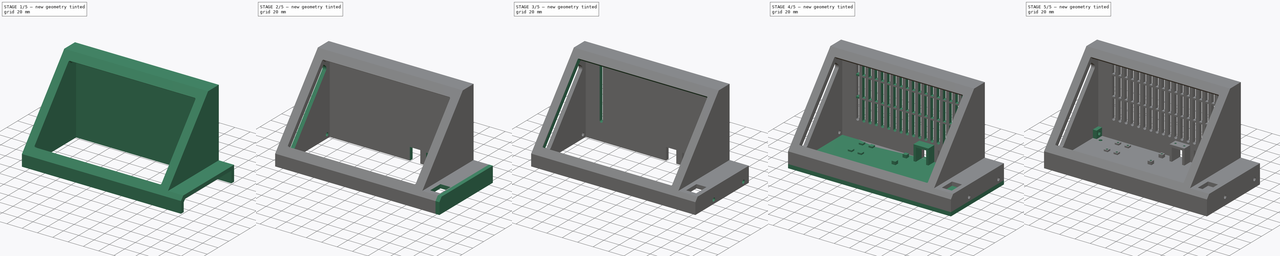
[diagram: build sequence overview — one tinted view per stage of 5, left to right]
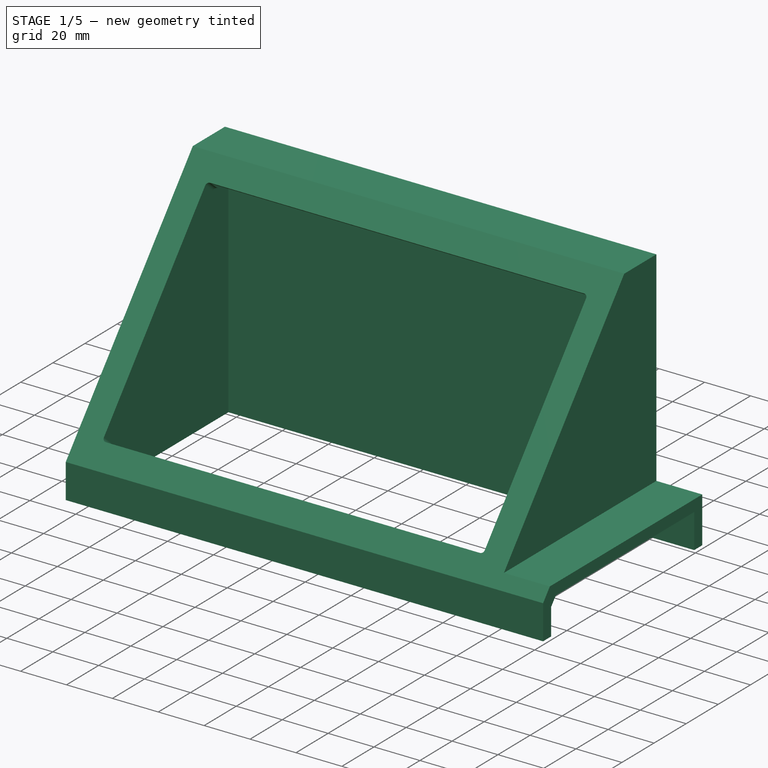
[diagram: stage 1 of 5 — iso view after this stage's code; geometry added in this stage tinted green]
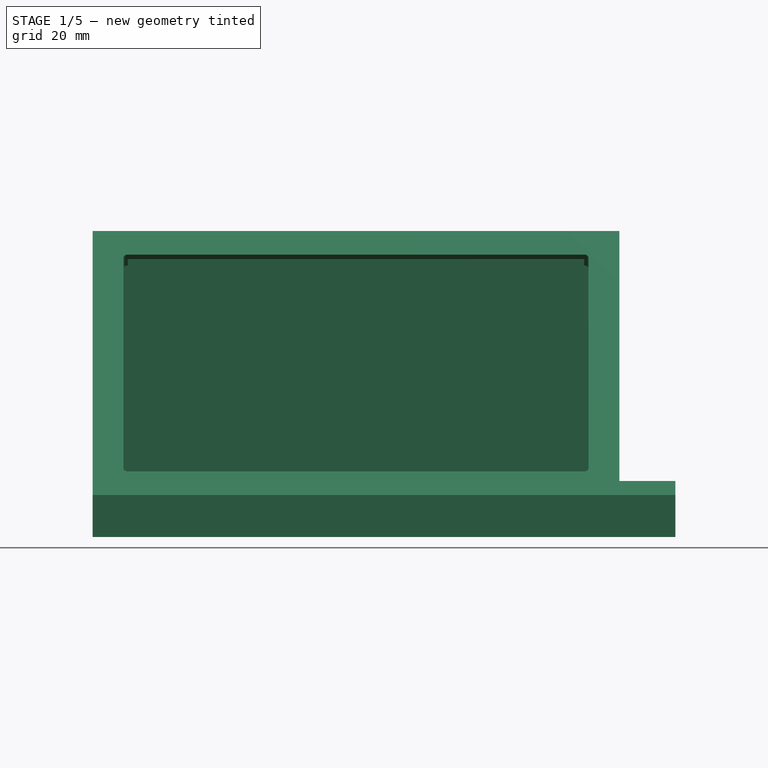
[diagram: stage 1 of 5 — front view after this stage's code; geometry added in this stage tinted green]
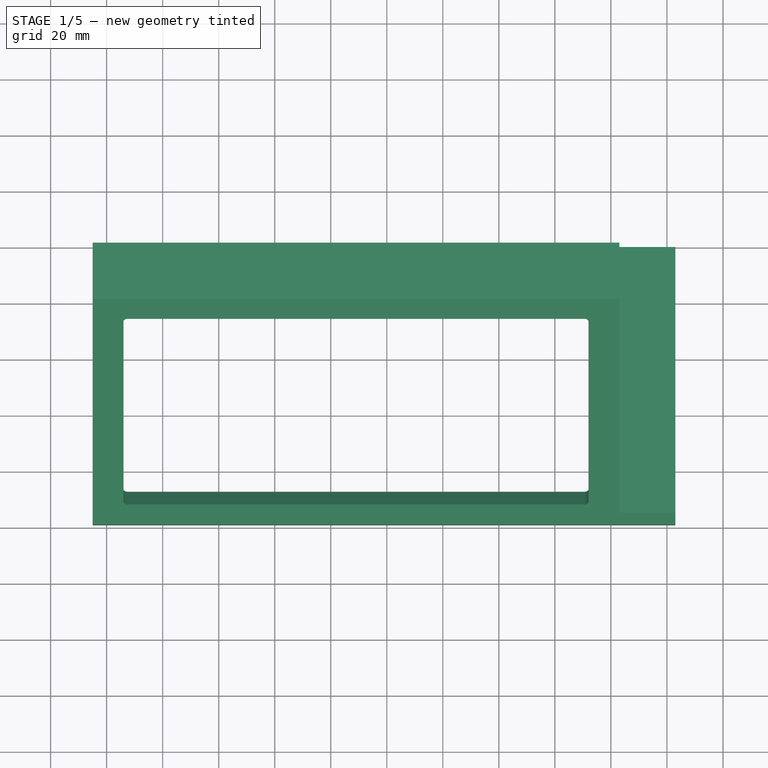
[diagram: stage 1 of 5 — top view after this stage's code; geometry added in this stage tinted green]
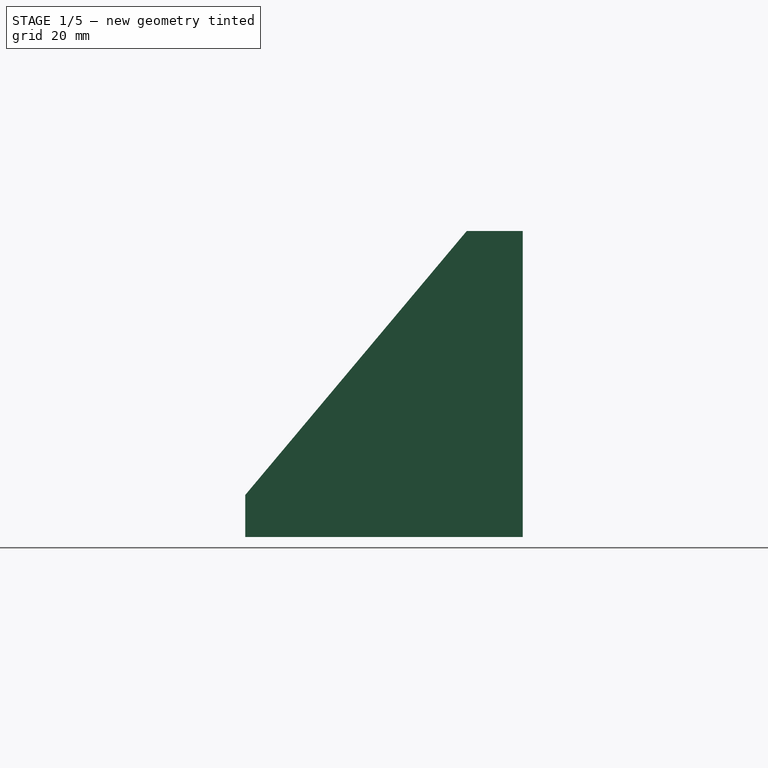
[diagram: stage 1 of 5 — right view after this stage's code; geometry added in this stage tinted green]
FCSTD DOCUMENT  (FreeCAD 0.20R29603 (Git))
Label: Raspberry Pi and Monitor Case
License: All rights reserved
LicenseURL: http://en.wikipedia.org/wiki/All_rights_reserved
objects: Sketcher::SketchObject×33, PartDesign::Pocket×20, PartDesign::Pad×13, PartDesign::Fillet×2, PartDesign::Body×2, App::Part×2, PartDesign::LinearPattern×1
note: 106 computed .brp shape members not serialized (recipe doc carries the construction recipe); baked Part::Feature solids carry a one-line shape summary decoded from their .brp

FEATURE [Sketcher::SketchObject] Sketch
  FullyConstrained = true
  MapMode = 5
  Placement = pos=(0,0,0) rot=(0.57735,0.57735,0.57735;2.0944rad)
  Support = -> [YZ_Plane]
  sketch-geometry (11):
    g0: LineSegment StartX=-20 StartY=109.223 StartZ=0 EndX=-99.0629 EndY=15 EndZ=0
    g1: LineSegment StartX=-99.0629 StartY=15 StartZ=0 EndX=-99.0629 EndY=0 EndZ=0
    g2: LineSegment StartX=0 StartY=0 StartZ=0 EndX=0 EndY=109.223 EndZ=0
    g3: LineSegment StartX=0 StartY=109.223 StartZ=0 EndX=-20 EndY=109.223 EndZ=0
    g4: LineSegment StartX=-99.0629 StartY=0 StartZ=0 EndX=-94.0629 EndY=0 EndZ=0
    g5: LineSegment StartX=-94.0629 StartY=0 StartZ=0 EndX=-94.0629 EndY=11.6244 EndZ=0
    g6: LineSegment StartX=-94.0629 StartY=11.6244 StartZ=0 EndX=-16.3631 EndY=104.223 EndZ=0
    g7: LineSegment StartX=-16.3631 StartY=104.223 StartZ=0 EndX=-5 EndY=104.223 EndZ=0
    g8: LineSegment StartX=-5 StartY=104.223 StartZ=0 EndX=-5 EndY=0 EndZ=0
    g9: LineSegment StartX=-5 StartY=0 StartZ=0 EndX=0 EndY=0 EndZ=0
    g10: LineSegment StartX=-16.3631 StartY=104.223 StartZ=0 EndX=-20.9593 EndY=108.08 EndZ=0
  constraints (32):
    c: Coincident(g0,g1)
    c: Vertical(g1)
    c: Vertical(g2)
    c: Coincident(g2,g3)
    c: Coincident(g3,g0)
    c: Horizontal(g3)
    c: Distance(g0,g0) = 123
    c: Angle(g1,g0) = 2.44346
    c: DistanceY(g1,g0) = 15
    c: DistanceX(g0,g2) = 20
    c: Coincident(g1,g4)
    c: PointOnObject(g4,g-1)
    c: Horizontal(g4)
    c: Coincident(g4,g5)
    c: Vertical(g5)
    c: Coincident(g5,g6)
    c: Coincident(g6,g7)
    c: Horizontal(g7)
    c: Coincident(g7,g8)
    c: PointOnObject(g8,g-1)
    c: Vertical(g8)
    c: Coincident(g8,g9)
    c: Coincident(g9,g2)
    c: Coincident(g2,g-1)
    c: DistanceX(g8,g2) = 5
    c: DistanceX(g1,g4) = 5
    c: DistanceY(g7,g2) = 5
    c: Coincident(g10,g6)
    c: PointOnObject(g10,g0)
    c: Perpendicular(g10,g0)
    c: Distance(g10,g6) = 6
    c: Parallel(g0,g6)
FEATURE [PartDesign::Pad] Pad
  Direction = (1,1,1)
  Length = 178
  Length2 = 100
  Placement = pos=(0,0,0) rot=(0.57735,0.57735,0.57735;2.0944rad)
  Profile = -> Sketch
  Type = 0
FEATURE [Sketcher::SketchObject] Sketch001
  ExternalGeometry = -> [Pad]
  FullyConstrained = true
  MapMode = 5
  Placement = pos=(-4.45e-14,-65.5185,54.9766) rot=(0.389282,0.389282,-0.834817;1.75037rad)
  Support = -> [Pad]
  sketch-geometry (8):
    g0: LineSegment StartX=-59.8143 StartY=172 StartZ=0 EndX=41.1857 EndY=172 EndZ=0
    g1: LineSegment StartX=41.1857 StartY=172 StartZ=0 EndX=41.1857 EndY=6 EndZ=0
    g2: LineSegment StartX=41.1857 StartY=6 StartZ=0 EndX=-59.8143 EndY=6 EndZ=0
    g3: LineSegment StartX=-59.8143 StartY=6 StartZ=0 EndX=-59.8143 EndY=172 EndZ=0
    g4: LineSegment StartX=-70.8143 StartY=178 StartZ=0 EndX=-59.8143 EndY=172 EndZ=0
    g5: LineSegment StartX=41.1857 StartY=172 StartZ=0 EndX=52.1857 EndY=178 EndZ=0
    g6: LineSegment StartX=41.1857 StartY=6 StartZ=0 EndX=52.1857 EndY=4.17e-14 EndZ=0
    g7: LineSegment StartX=-59.8143 StartY=6 StartZ=0 EndX=-70.8143 EndY=-4.44e-14 EndZ=0
  constraints (20):
    c: Coincident(g0,g1)
    c: Coincident(g1,g2)
    c: Coincident(g2,g3)
    c: Coincident(g3,g0)
    c: Horizontal(g0)
    c: Horizontal(g2)
    c: Vertical(g1)
    c: Vertical(g3)
    c: DistanceX(g0,g0) = 101
    c: DistanceY(g1,g0) = 166
    c: Coincident(g4,g-3)
    c: Coincident(g4,g0)
    c: Coincident(g5,g0)
    c: Coincident(g5,g-3)
    c: Coincident(g6,g1)
    c: Coincident(g6,g-4)
    c: Coincident(g7,g2)
    c: Coincident(g7,g-4)
    c: Equal(g4,g7)
    c: Equal(g7,g6)
FEATURE [PartDesign::Pocket] Pocket
  BaseFeature = -> Pad
  Direction = (1,1,1)
  Length = 5
  Length2 = 100
  Placement = pos=(0,0,0) rot=(0.57735,0.57735,0.57735;2.0944rad)
  Profile = -> Sketch001
  Type = 2
FEATURE [PartDesign::Fillet] Fillet
  Base = -> Pocket [Edge31,Edge29,Edge34,Edge32]
  BaseFeature = -> Pocket
  Placement = pos=(0,0,0) rot=(0.57735,0.57735,0.57735;2.0944rad)
  Radius = 1.5
  SupportTransform = false
  UseAllEdges = false
FEATURE [Sketcher::SketchObject] Sketch002
  ExternalGeometry = -> [Fillet]
  FullyConstrained = true
  MapMode = 5
  Placement = pos=(3.53e-14,38.4479,45.8204) rot=(0.684791,0.684791,-0.249244;2.65306rad)
  Support = -> [Fillet]
  sketch-geometry (4):
    g0: LineSegment StartX=-84.5284 StartY=170.5 StartZ=0 EndX=-79.5284 EndY=170.5 EndZ=0
    g1: LineSegment StartX=-79.5284 StartY=170.5 StartZ=0 EndX=-79.5284 EndY=7.5 EndZ=0
    g2: LineSegment StartX=-79.5284 StartY=7.5 StartZ=0 EndX=-84.5284 EndY=7.5 EndZ=0
    g3: LineSegment StartX=-84.5284 StartY=7.5 StartZ=0 EndX=-84.5284 EndY=170.5 EndZ=0
  constraints (10):
    c: Coincident(g0,g1)
    c: Coincident(g1,g2)
    c: Coincident(g2,g3)
    c: Coincident(g3,g0)
    c: Horizontal(g0)
    c: Horizontal(g2)
    c: Vertical(g3)
    c: Coincident(g1,g-3)
    c: Coincident(g0,g-3)
    c: DistanceX(g0,g0) = 5
FEATURE [PartDesign::Pocket] Pocket001
  BaseFeature = -> Fillet
  Direction = (1,1,1)
  Length = 3
  Length2 = 100
  Placement = pos=(0,0,0) rot=(0.57735,0.57735,0.57735;2.0944rad)
  Profile = -> Sketch002
  Type = 0
FEATURE [Sketcher::SketchObject] Sketch003
  ExternalGeometry = -> [Pocket001]
  FullyConstrained = true
  MapMode = 5
  Placement = pos=(-2e-16,0,0) rot=(0.57735,0.57735,-0.57735;4.18879rad)
  Support = -> [Pocket001]
  sketch-geometry (5):
    g0: LineSegment StartX=0 StartY=0 StartZ=0 EndX=-99.0629 EndY=-9.95e-14 EndZ=0
    g1: LineSegment StartX=-99.0629 StartY=-9.95e-14 StartZ=0 EndX=-99.0629 EndY=-15 EndZ=0
    g2: LineSegment StartX=-99.0629 StartY=-15 StartZ=0 EndX=-20 EndY=-109.223 EndZ=0
    g3: LineSegment StartX=-20 StartY=-109.223 StartZ=0 EndX=4.26e-14 EndY=-109.223 EndZ=0
    g4: LineSegment StartX=4.26e-14 StartY=-109.223 StartZ=0 EndX=0 EndY=0 EndZ=0
  constraints (10):
    c: Coincident(g-1,g0)
    c: Coincident(g0,g-6)
    c: Coincident(g0,g1)
    c: Coincident(g1,g-6)
    c: Coincident(g1,g2)
    c: Coincident(g2,g-4)
    c: Coincident(g2,g3)
    c: Coincident(g3,g-5)
    c: Coincident(g3,g4)
    c: Coincident(g4,g0)
FEATURE [PartDesign::Pad] Pad001
  BaseFeature = -> Pocket001
  Direction = (1,1,1)
  Length = 5
  Length2 = 100
  Placement = pos=(0,0,0) rot=(0.57735,0.57735,0.57735;2.0944rad)
  Profile = -> Sketch003
  Type = 0
FEATURE [Sketcher::SketchObject] Sketch004
  ExternalGeometry = -> [Pad001]
  FullyConstrained = true
  MapMode = 5
  Placement = pos=(178,-3.92e-14,3.92e-14) rot=(0.57735,0.57735,0.57735;2.0944rad)
  Support = -> [Pad001]
  sketch-geometry (4):
    g0: LineSegment StartX=1.33e-14 StartY=20 StartZ=0 EndX=7.28e-14 EndY=109.223 EndZ=0
    g1: LineSegment StartX=7.28e-14 StartY=109.223 StartZ=0 EndX=-20 EndY=109.223 EndZ=0
    g2: LineSegment StartX=-20 StartY=109.223 StartZ=0 EndX=-94.8674 EndY=20 EndZ=0
    g3: LineSegment StartX=-94.8674 StartY=20 StartZ=0 EndX=1.42e-14 EndY=20 EndZ=0
  constraints (10):
    c: PointOnObject(g0,g-6)
    c: Coincident(g0,g-6)
    c: Coincident(g0,g1)
    c: Coincident(g1,g-5)
    c: Coincident(g1,g2)
    c: PointOnObject(g2,g-4)
    c: Coincident(g2,g3)
    c: Coincident(g3,g0)
    c: Horizontal(g3)
    c: DistanceY(g-1,g0) = 20
FEATURE [PartDesign::Pad] Pad002
  BaseFeature = -> Pad001
  Direction = (1,1,1)
  Length = 5
  Length2 = 100
  Placement = pos=(0,0,0) rot=(0.57735,0.57735,0.57735;2.0944rad)
  Profile = -> Sketch004
  Type = 0
FEATURE [Sketcher::SketchObject] Sketch005
  ExternalGeometry = -> [Pad002]
  FullyConstrained = true
  MapMode = 5
  Placement = pos=(178,-3.92e-14,3.92e-14) rot=(0.57735,0.57735,0.57735;2.0944rad)
  Support = -> [Pad002]
  sketch-geometry (10):
    g0: LineSegment StartX=-99.0629 StartY=0 StartZ=0 EndX=-99.0629 EndY=15 EndZ=0
    g1: LineSegment StartX=-99.0629 StartY=15 StartZ=0 EndX=-94.8674 EndY=20 EndZ=0
    g2: LineSegment StartX=-94.8674 StartY=20 StartZ=0 EndX=1.42e-14 EndY=20 EndZ=0
    g3: LineSegment StartX=1.42e-14 StartY=20 StartZ=0 EndX=0 EndY=0 EndZ=0
    g4: LineSegment StartX=-99.0629 StartY=0 StartZ=0 EndX=-94.0629 EndY=1.874e-13 EndZ=0
    g5: LineSegment StartX=-94.0629 StartY=1.874e-13 StartZ=0 EndX=-94.0629 EndY=11.6244 EndZ=0
    g6: LineSegment StartX=-94.0629 StartY=11.6244 StartZ=0 EndX=-91.2304 EndY=15 EndZ=0
    g7: LineSegment StartX=-91.2304 StartY=15 StartZ=0 EndX=-5 EndY=15 EndZ=0
    g8: LineSegment StartX=-5 StartY=15 StartZ=0 EndX=-5 EndY=1.78e-14 EndZ=0
    g9: LineSegment StartX=-5 StartY=1.78e-14 StartZ=0 EndX=0 EndY=0 EndZ=0
  constraints (22):
    c: Coincident(g-3,g0)
    c: Coincident(g0,g-4)
    c: Coincident(g0,g1)
    c: Coincident(g1,g-4)
    c: Coincident(g1,g2)
    c: Coincident(g2,g-5)
    c: Coincident(g2,g3)
    c: Coincident(g3,g-1)
    c: Coincident(g0,g4)
    c: Coincident(g4,g-6)
    c: Coincident(g4,g5)
    c: Coincident(g5,g-7)
    c: Coincident(g5,g6)
    c: PointOnObject(g6,g-7)
    c: Coincident(g6,g7)
    c: PointOnObject(g7,g-8)
    c: Horizontal(g7)
    c: Coincident(g7,g8)
    c: Coincident(g8,g-8)
    c: Coincident(g8,g9)
    c: Coincident(g9,g3)
    c: DistanceY(g7,g2) = 5
FEATURE [PartDesign::Pad] Pad003
  BaseFeature = -> Pad002
  Direction = (1,1,1)
  Length = 25
  Length2 = 100
  Placement = pos=(0,0,0) rot=(0.57735,0.57735,0.57735;2.0944rad)
  Profile = -> Sketch005
  Type = 0
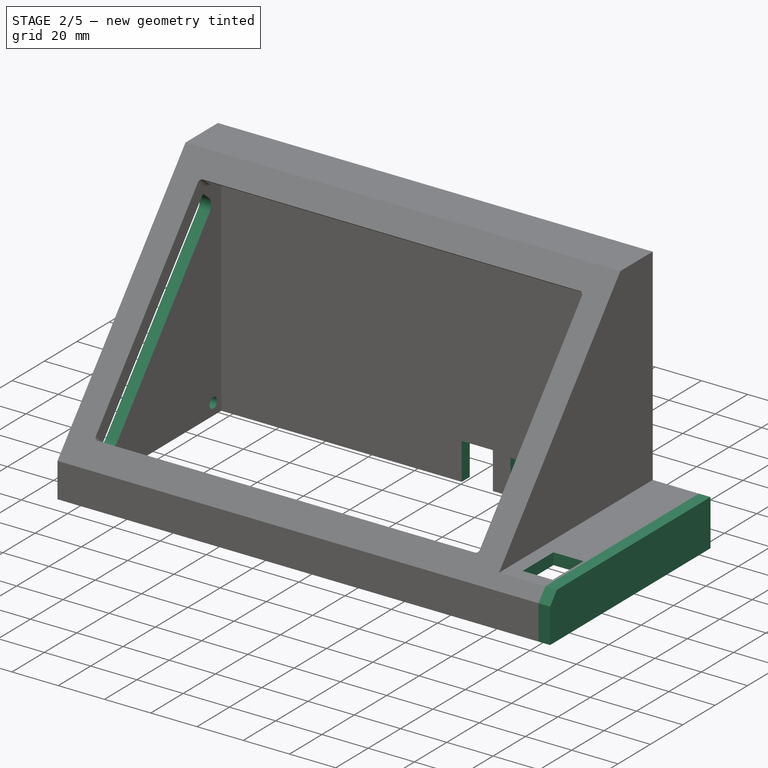
[diagram: stage 2 of 5 — iso view after this stage's code; geometry added in this stage tinted green]
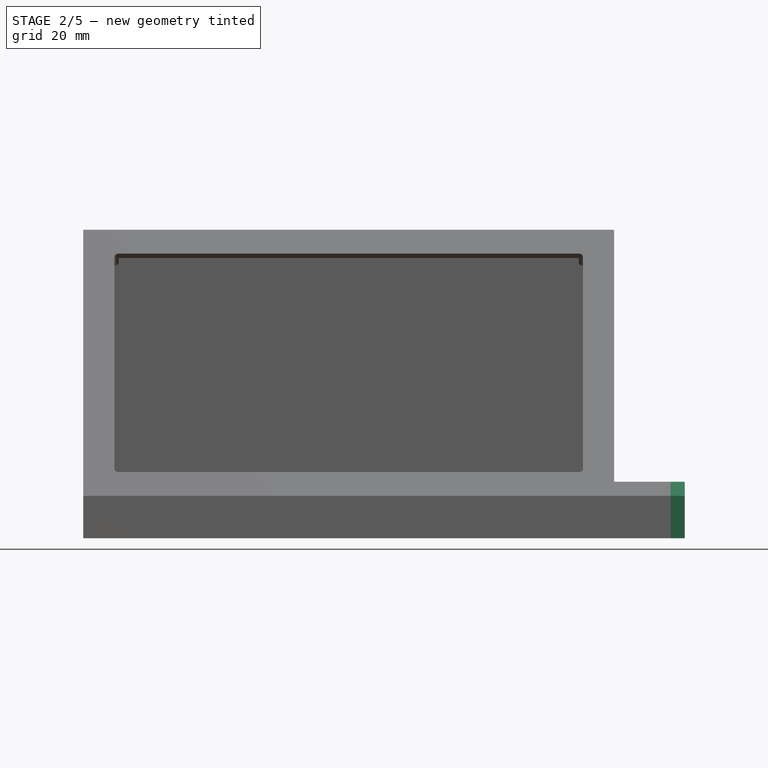
[diagram: stage 2 of 5 — front view after this stage's code; geometry added in this stage tinted green]
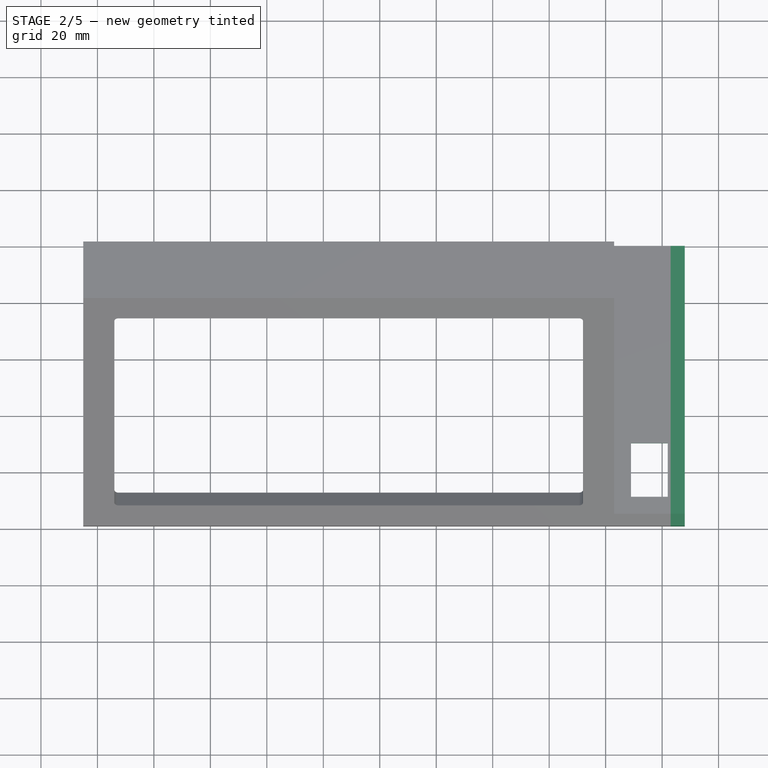
[diagram: stage 2 of 5 — top view after this stage's code; geometry added in this stage tinted green]
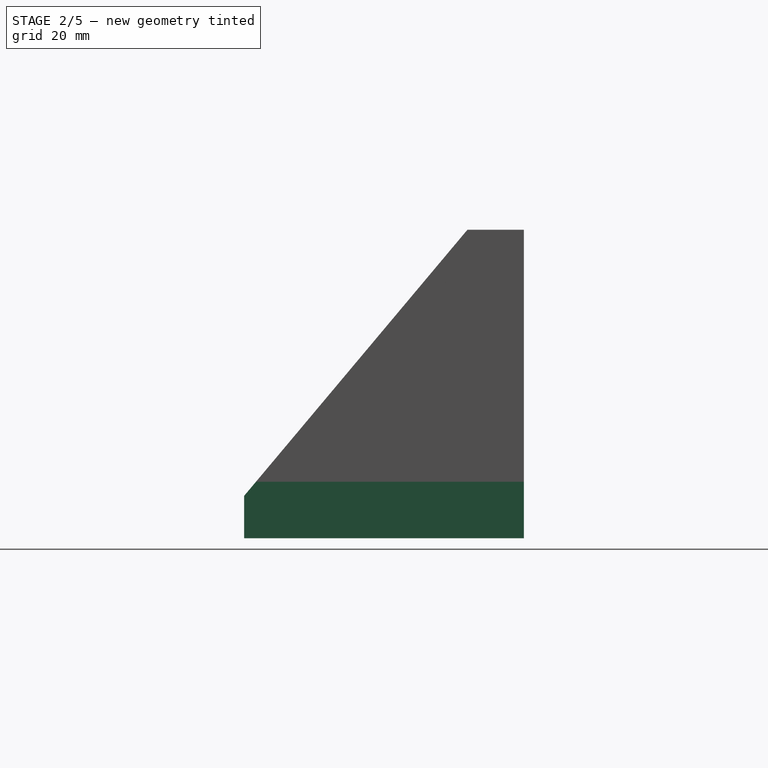
[diagram: stage 2 of 5 — right view after this stage's code; geometry added in this stage tinted green]
FEATURE [Sketcher::SketchObject] Sketch006
  ExternalGeometry = -> [Pad003]
  FullyConstrained = true
  MapMode = 5
  Placement = pos=(203,-2.578e-13,2.436e-13) rot=(0.57735,0.57735,0.57735;2.0944rad)
  Support = -> [Pad003]
  sketch-geometry (5):
    g0: LineSegment StartX=-99.0629 StartY=-3.85e-14 StartZ=0 EndX=-99.0629 EndY=15 EndZ=0
    g1: LineSegment StartX=-99.0629 StartY=15 StartZ=0 EndX=-94.8674 EndY=20 EndZ=0
    g2: LineSegment StartX=-94.8674 StartY=20 StartZ=0 EndX=0 EndY=20 EndZ=0
    g3: LineSegment StartX=0 StartY=20 StartZ=0 EndX=0 EndY=0 EndZ=0
    g4: LineSegment StartX=0 StartY=0 StartZ=0 EndX=-99.0629 EndY=-3.85e-14 EndZ=0
  constraints (10):
    c: Coincident(g-3,g0)
    c: Coincident(g0,g-4)
    c: Coincident(g0,g1)
    c: Coincident(g1,g-5)
    c: Coincident(g1,g2)
    c: Coincident(g2,g-6)
    c: Coincident(g2,g3)
    c: Coincident(g3,g-1)
    c: Coincident(g3,g4)
    c: Coincident(g4,g0)
FEATURE [PartDesign::Pad] Pad004
  BaseFeature = -> Pad003
  Direction = (1,1,1)
  Length = 5
  Length2 = 100
  Placement = pos=(0,0,0) rot=(0.57735,0.57735,0.57735;2.0944rad)
  Profile = -> Sketch006
  Type = 0
FEATURE [Sketcher::SketchObject] Sketch007
  ExternalGeometry = -> [Pad004]
  FullyConstrained = true
  MapMode = 5
  Placement = pos=(-1.78e-14,-4.6e-15,20) rot=(0,0,-1;1.5708rad)
  Support = -> [Pad004]
  sketch-geometry (6):
    g0: LineSegment StartX=69.8674 StartY=202 StartZ=0 EndX=88.8674 EndY=202 EndZ=0
    g1: LineSegment StartX=88.8674 StartY=202 StartZ=0 EndX=88.8674 EndY=189 EndZ=0
    g2: LineSegment StartX=88.8674 StartY=189 StartZ=0 EndX=69.8674 EndY=189 EndZ=0
    g3: LineSegment StartX=69.8674 StartY=189 StartZ=0 EndX=69.8674 EndY=202 EndZ=0
    g4: LineSegment StartX=88.8674 StartY=202 StartZ=0 EndX=94.8674 EndY=208 EndZ=0
    g5: LineSegment StartX=88.8674 StartY=189 StartZ=0 EndX=94.8674 EndY=183 EndZ=0
  constraints (16):
    c: Coincident(g0,g1)
    c: Coincident(g1,g2)
    c: Coincident(g2,g3)
    c: Coincident(g3,g0)
    c: Horizontal(g0)
    c: Horizontal(g2)
    c: Vertical(g1)
    c: Vertical(g3)
    c: DistanceY(g1,g0) = 13
    c: DistanceX(g0,g0) = 19
    c: Coincident(g4,g0)
    c: Coincident(g4,g-3)
    c: Coincident(g5,g1)
    c: Coincident(g5,g-4)
    c: Equal(g5,g4)
    c: Angle(g-3,g4) = 0.785398
FEATURE [PartDesign::Pocket] Pocket002
  BaseFeature = -> Pad004
  Direction = (1,1,1)
  Length = 5
  Length2 = 100
  Placement = pos=(0,0,0) rot=(0.57735,0.57735,0.57735;2.0944rad)
  Profile = -> Sketch007
  Type = 2
FEATURE [Sketcher::SketchObject] Sketch008
  ExternalGeometry = -> [Pocket002]
  FullyConstrained = true
  MapMode = 5
  Placement = pos=(-5,3.4e-15,-3.1e-15) rot=(-0.57735,-0.57735,0.57735;2.0944rad)
  Support = -> [Pocket002]
  sketch-geometry (11):
    g0: LineSegment StartX=-25.9623 StartY=-92.0057 StartZ=0 EndX=-83.142 EndY=-23.8615 EndZ=0
    g1: LineSegment StartX=-82.649 StartY=-18.2262 StartZ=0 EndX=-74.9886 EndY=-11.7983 EndZ=0
    g2: LineSegment StartX=-69.3532 StartY=-12.2913 StartZ=0 EndX=-12.1735 EndY=-80.4355 EndZ=0
    g3: LineSegment StartX=-12.6665 StartY=-86.0709 StartZ=0 EndX=-20.3269 EndY=-92.4987 EndZ=0
    g4: LineSegment StartX=-48.4457 StartY=-65.211 StartZ=0 EndX=-53.425 EndY=-69.3892 EndZ=0
    g5: ArcOfCircle CenterX=-15.2376 CenterY=-83.0067 CenterZ=0 NormalX=0 NormalY=0 NormalZ=1 AngleXU=0 Radius=4 StartAngle=5.41052 EndAngle=6.98132
    g6: ArcOfCircle CenterX=-22.8981 CenterY=-89.4346 CenterZ=0 NormalX=0 NormalY=0 NormalZ=1 AngleXU=0 Radius=4 StartAngle=3.83972 EndAngle=5.41052
    g7: ArcOfCircle CenterX=-80.0779 CenterY=-21.2904 CenterZ=0 NormalX=0 NormalY=0 NormalZ=1 AngleXU=0 Radius=4 StartAngle=2.26893 EndAngle=3.83972
    g8: ArcOfCircle CenterX=-72.4174 CenterY=-14.8625 CenterZ=0 NormalX=0 NormalY=0 NormalZ=1 AngleXU=0 Radius=4 StartAngle=0.698132 EndAngle=2.26893
    g9: LineSegment StartX=-20 StartY=-109.223 StartZ=0 EndX=-22.8981 EndY=-89.4346 EndZ=0
    g10: LineSegment StartX=-80.0779 StartY=-21.2904 StartZ=0 EndX=-99.0629 EndY=-15 EndZ=0
  constraints (28):
    c: Parallel(g0,g-5)
    c: Parallel(g2,g0)
    c: Perpendicular(g0,g3)
    c: Perpendicular(g1,g0)
    c: PointOnObject(g4,g0)
    c: PointOnObject(g4,g-5)
    c: Perpendicular(g4,g0)
    c: Tangent(g3,g5) = 1.5708
    c: Tangent(g2,g5) = 1.5708
    c: Tangent(g3,g6) = 1.5708
    c: Tangent(g0,g6) = 1.5708
    c: Tangent(g0,g7) = 1.5708
    c: Tangent(g1,g7) = 1.5708
    c: Tangent(g2,g8) = 1.5708
    c: Tangent(g1,g8) = 1.5708
    c: Distance(g7,g1) = 4
    c: Distance(g8,g1) = 4
    c: Distance(g3,g5) = 4
    c: Distance(g3,g6) = 4
    c: Distance(g4,g4) = 6.5
    c: Distance(g2,g0) = 18
    c: Coincident(g9,g-5)
    c: Coincident(g9,g6)
    c: Coincident(g10,g7)
    c: Coincident(g10,g-6)
    c: Equal(g9,g10)
    c: Distance(g9,g6) = 20
    c: Distance(g9,g4) = 52
FEATURE [PartDesign::Pocket] Pocket003
  BaseFeature = -> Pocket002
  Direction = (1,1,1)
  Length = 5
  Length2 = 100
  Placement = pos=(0,0,0) rot=(0.57735,0.57735,0.57735;2.0944rad)
  Profile = -> Sketch008
  Type = 2
FEATURE [Sketcher::SketchObject] Sketch018
  ExternalGeometry = -> [Pocket003]
  FullyConstrained = true
  MapMode = 5
  Placement = pos=(-2.2e-15,-5,1.1e-15) rot=(-0.57735,-0.57735,0.57735;4.18879rad)
  Support = -> [Pocket003]
  sketch-geometry (4):
    g0: LineSegment StartX=-15 StartY=135 StartZ=0 EndX=-5 EndY=135 EndZ=0
    g1: LineSegment StartX=-5 StartY=135 StartZ=0 EndX=-5 EndY=125 EndZ=0
    g2: LineSegment StartX=-5 StartY=125 StartZ=0 EndX=-15 EndY=125 EndZ=0
    g3: LineSegment StartX=-15 StartY=125 StartZ=0 EndX=-15 EndY=135 EndZ=0
  constraints (12):
    c: Coincident(g0,g1)
    c: Coincident(g1,g2)
    c: Coincident(g2,g3)
    c: Coincident(g3,g0)
    c: Horizontal(g0)
    c: Horizontal(g2)
    c: Vertical(g1)
    c: Vertical(g3)
    c: DistanceY(g-1,g1) = 125
    c: DistanceY(g1,g0) = 10
    c: DistanceX(g2,g1) = 10
    c: DistanceX(g1,g-1) = 5
FEATURE [PartDesign::Pocket] Pocket007
  BaseFeature = -> Pocket003
  Direction = (1,1,1)
  Length = 3.2
  Length2 = 100
  Placement = pos=(0,0,0) rot=(0.57735,0.57735,0.57735;2.0944rad)
  Profile = -> Sketch018
  Type = 0
FEATURE [Sketcher::SketchObject] Sketch019
  ExternalGeometry = -> [Pocket007]
  FullyConstrained = true
  MapMode = 5
  Placement = pos=(-8e-16,-1.8,5.1e-15) rot=(0.57735,0.57735,-0.57735;2.0944rad)
  Support = -> [Pocket007]
  sketch-geometry (3):
    g0: Circle CenterX=-10 CenterY=130 CenterZ=0 NormalX=0 NormalY=0 NormalZ=1 AngleXU=0 Radius=3
    g1: LineSegment StartX=-10 StartY=130 StartZ=0 EndX=-5 EndY=135 EndZ=0
    g2: LineSegment StartX=-15 StartY=125 StartZ=0 EndX=-10 EndY=130 EndZ=0
  constraints (7):
    c: Radius(g0) = 3
    c: Coincident(g1,g0)
    c: Coincident(g1,g-3)
    c: Coincident(g2,g-4)
    c: Coincident(g2,g0)
    c: Parallel(g2,g1)
    c: Equal(g2,g1)
FEATURE [PartDesign::Pocket] Pocket008
  BaseFeature = -> Pocket007
  Direction = (1,1,1)
  Length = 5
  Length2 = 100
  Placement = pos=(0,0,0) rot=(0.57735,0.57735,0.57735;2.0944rad)
  Profile = -> Sketch019
  Type = 2
FEATURE [Sketcher::SketchObject] Sketch020
  ExternalGeometry = -> [Pocket008]
  FullyConstrained = true
  MapMode = 5
  Placement = pos=(-2.2e-15,-5,1.1e-15) rot=(-0.57735,-0.57735,0.57735;4.18879rad)
  Support = -> [Pocket008]
  sketch-geometry (4):
    g0: LineSegment StartX=-2.487e-13 StartY=103.9 StartZ=0 EndX=-16 EndY=103.9 EndZ=0
    g1: LineSegment StartX=-16 StartY=103.9 StartZ=0 EndX=-16 EndY=117.4 EndZ=0
    g2: LineSegment StartX=-16 StartY=117.4 StartZ=0 EndX=-2.487e-13 EndY=117.4 EndZ=0
    g3: LineSegment StartX=-2.487e-13 StartY=117.4 StartZ=0 EndX=-2.487e-13 EndY=103.9 EndZ=0
  constraints (12):
    c: Coincident(g0,g1)
    c: Coincident(g1,g2)
    c: Coincident(g2,g3)
    c: Coincident(g3,g0)
    c: Horizontal(g0)
    c: Horizontal(g2)
    c: Vertical(g1)
    c: Vertical(g3)
    c: DistanceY(g-1,g0) = 103.9
    c: DistanceX(g2,g-3) = 0
    c: DistanceY(g0,g1) = 13.5
    c: DistanceX(g0,g0) = 16
FEATURE [PartDesign::Pocket] Pocket009
  BaseFeature = -> Pocket008
  Direction = (1,1,1)
  Length = 5
  Length2 = 100
  Placement = pos=(0,0,0) rot=(0.57735,0.57735,0.57735;2.0944rad)
  Profile = -> Sketch020
  Type = 2
FEATURE [Sketcher::SketchObject] Sketch024
  ExternalGeometry = -> [Pocket009]
  FullyConstrained = true
  MapMode = 5
  Placement = pos=(-5,3.4e-15,-3.1e-15) rot=(-0.57735,-0.57735,0.57735;2.0944rad)
  Support = -> [Pocket009]
  sketch-geometry (2):
    g0: Circle CenterX=-89.0629 CenterY=-5 CenterZ=0 NormalX=0 NormalY=0 NormalZ=1 AngleXU=0 Radius=2.25
    g1: Circle CenterX=-10 CenterY=-5 CenterZ=0 NormalX=0 NormalY=0 NormalZ=1 AngleXU=0 Radius=2.25
  constraints (6):
    c: DistanceX(g-3,g0) = 10
    c: DistanceX(g1,g-1) = 10
    c: DistanceY(g1,g-1) = 5
    c: DistanceY(g0,g-3) = 5
    c: Radius(g0) = 2.25
    c: Radius(g1) = 2.25
FEATURE [PartDesign::Pocket] Pocket012
  BaseFeature = -> Pocket009
  Direction = (1,1,1)
  Length = 5
  Length2 = 100
  Placement = pos=(0,0,0) rot=(0.57735,0.57735,0.57735;2.0944rad)
  Profile = -> Sketch024
  Type = 0
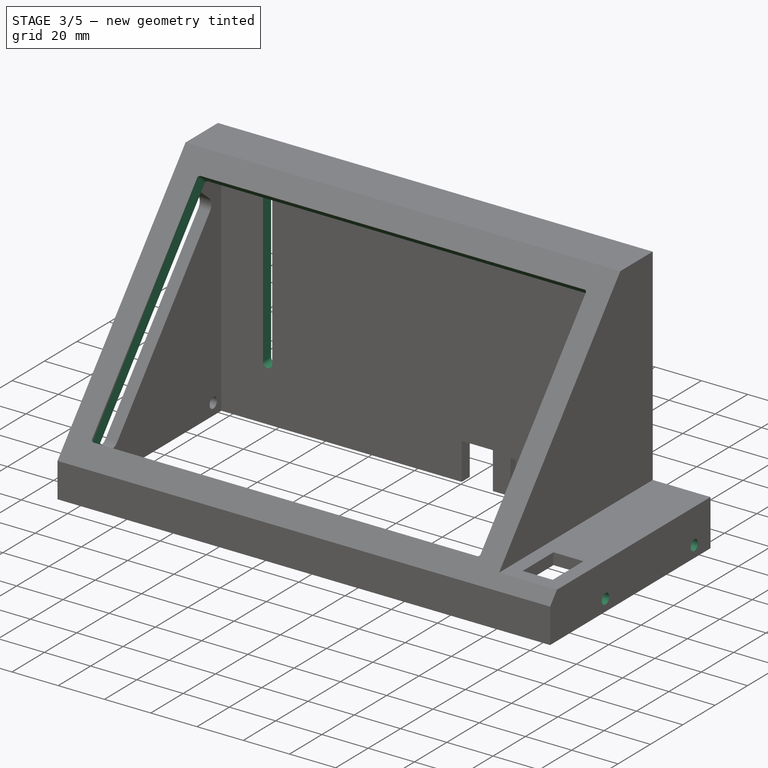
[diagram: stage 3 of 5 — iso view after this stage's code; geometry added in this stage tinted green]
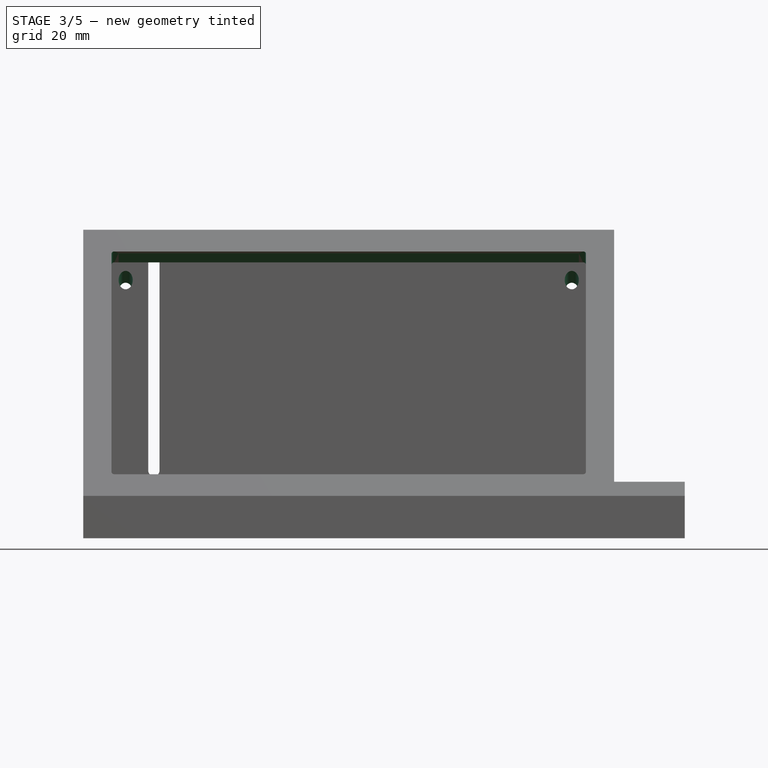
[diagram: stage 3 of 5 — front view after this stage's code; geometry added in this stage tinted green]
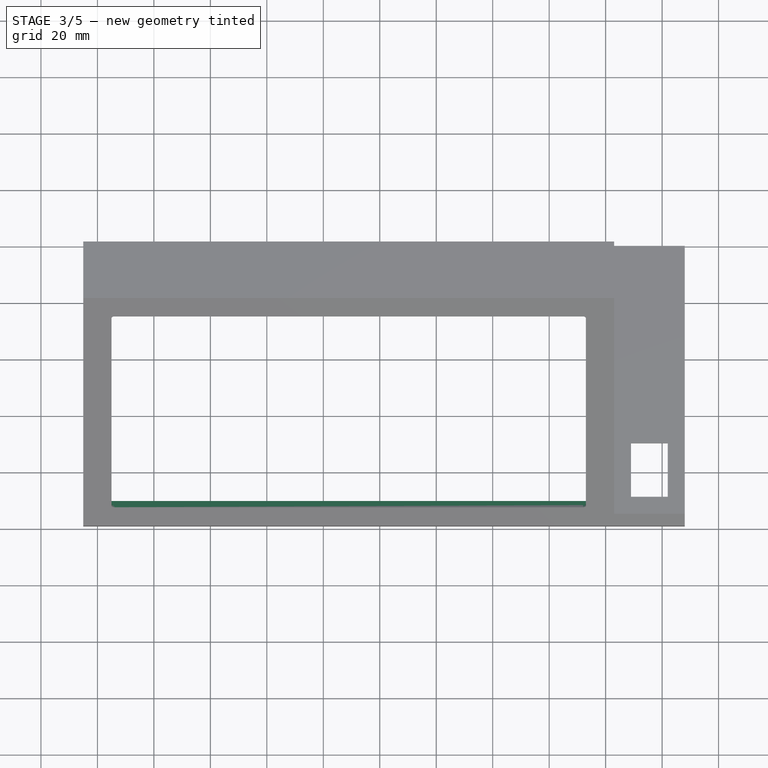
[diagram: stage 3 of 5 — top view after this stage's code; geometry added in this stage tinted green]
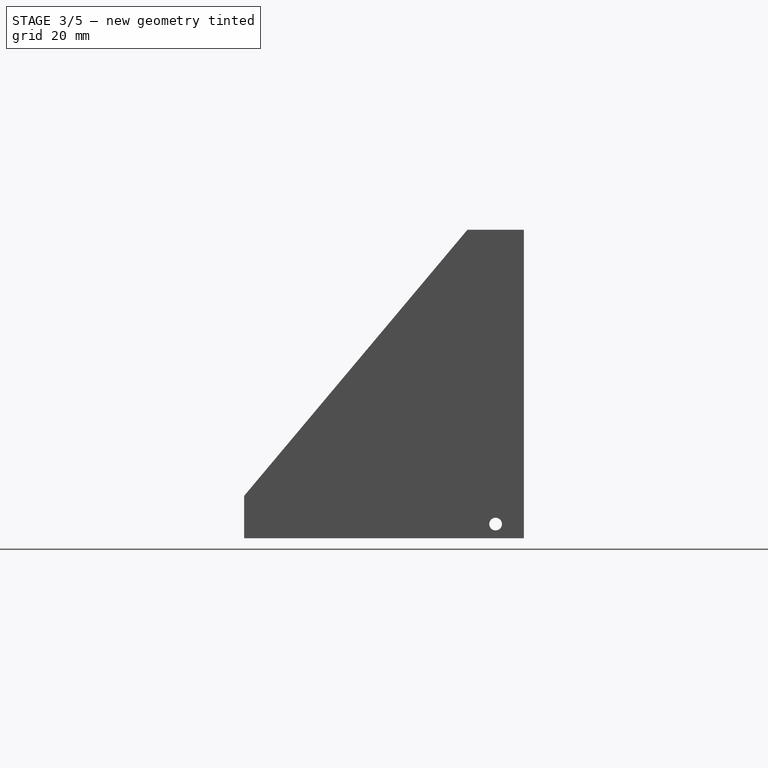
[diagram: stage 3 of 5 — right view after this stage's code; geometry added in this stage tinted green]
FEATURE [Sketcher::SketchObject] Sketch025
  ExternalGeometry = -> [Pocket012]
  FullyConstrained = true
  MapMode = 5
  Placement = pos=(208,-2.746e-13,1.789e-13) rot=(0.57735,0.57735,0.57735;2.0944rad)
  Support = -> [Pocket012]
  sketch-geometry (2):
    g0: Circle CenterX=-64.8629 CenterY=5 CenterZ=0 NormalX=0 NormalY=0 NormalZ=1 AngleXU=0 Radius=2.25
    g1: Circle CenterX=-10 CenterY=5 CenterZ=0 NormalX=0 NormalY=0 NormalZ=1 AngleXU=0 Radius=2.25
  constraints (6):
    c: DistanceX(g1,g-3) = 10
    c: DistanceX(g-3,g0) = 34.2
    c: DistanceY(g-3,g0) = 5
    c: DistanceY(g-1,g1) = 5
    c: Radius(g0) = 2.25
    c: Radius(g1) = 2.25
FEATURE [PartDesign::Pocket] Pocket013
  BaseFeature = -> Pocket012
  Direction = (1,1,1)
  Length = 5
  Length2 = 100
  Placement = pos=(0,0,0) rot=(0.57735,0.57735,0.57735;2.0944rad)
  Profile = -> Sketch025
  Type = 0
FEATURE [Sketcher::SketchObject] Sketch026
  ExternalGeometry = -> [Pocket013]
  FullyConstrained = true
  MapMode = 5
  Placement = pos=(-4.14e-14,-60.9223,51.1199) rot=(0.671543,0.671543,0.313146;3.74854rad)
  Support = -> [Pocket013]
  sketch-geometry (4):
    g0: Circle CenterX=-48.1857 CenterY=10 CenterZ=0 NormalX=0 NormalY=0 NormalZ=1 AngleXU=0 Radius=1.4
    g1: Circle CenterX=66.8143 CenterY=10 CenterZ=0 NormalX=0 NormalY=0 NormalZ=1 AngleXU=0 Radius=1.4
    g2: Circle CenterX=-48.1857 CenterY=168 CenterZ=0 NormalX=0 NormalY=0 NormalZ=1 AngleXU=0 Radius=1.4
    g3: Circle CenterX=66.8143 CenterY=168 CenterZ=0 NormalX=0 NormalY=0 NormalZ=1 AngleXU=0 Radius=1.4
  constraints (12):
    c: DistanceX(g0,g-5) = 7
    c: DistanceX(g-8,g1) = 7
    c: DistanceX(g-7,g3) = 7
    c: DistanceX(g2,g-5) = 7
    c: Radius(g2) = 1.4
    c: Radius(g0) = 1.4
    c: Radius(g1) = 1.4
    c: Radius(g3) = 1.4
    c: DistanceY(g-7,g3) = -4
    c: DistanceY(g2,g-6) = 4
    c: DistanceY(g-8,g1) = 4
    c: DistanceY(g-4,g0) = 4
FEATURE [PartDesign::Pocket] Pocket014
  BaseFeature = -> Pocket013
  Direction = (1,1,1)
  Length = 4
  Length2 = 100
  Placement = pos=(0,0,0) rot=(0.57735,0.57735,0.57735;2.0944rad)
  Profile = -> Sketch026
  Type = 0
FEATURE [Sketcher::SketchObject] Sketch027
  ExternalGeometry = -> [Pocket014]
  FullyConstrained = true
  MapMode = 5
  Placement = pos=(-4.14e-14,-60.9223,51.1199) rot=(0.671543,0.671543,0.313146;3.74854rad)
  Support = -> [Pocket014]
  sketch-geometry (2):
    g0: Circle CenterX=66.8143 CenterY=168 CenterZ=0 NormalX=0 NormalY=0 NormalZ=1 AngleXU=0 Radius=2.5
    g1: Circle CenterX=66.8143 CenterY=10 CenterZ=0 NormalX=0 NormalY=0 NormalZ=1 AngleXU=0 Radius=2.5
  constraints (4):
    c: Coincident(g1,g-3)
    c: Coincident(g0,g-4)
    c: Radius(g0) = 2.5
    c: Radius(g1) = 2.5
FEATURE [PartDesign::Pocket] Pocket015
  BaseFeature = -> Pocket014
  Direction = (1,1,1)
  Length = 27
  Length2 = 100
  Placement = pos=(0,0,0) rot=(0.57735,0.57735,0.57735;2.0944rad)
  Profile = -> Sketch027
  Reversed = true
  Type = 0
FEATURE [PartDesign::Body] Body001
  Group = -> [Sketch009,Pad005,Sketch010,Pad006,Sketch012,Pad007,Sketch013,Pad008,Sketch014,Pad009,Sketch015,Pocket004,Sketch016,Pocket005,Sketch017,Pocket006,Sketch021,Pad010,Sketch022,Pocket010,Sketch023,Pocket011,Sketch028,Pocket016]
  Origin = -> Origin003
  Tip = -> Pocket016
FEATURE [App::Part] Part001  label="Bottom"
  Group = -> [Body001]
  Origin = -> Origin002
FEATURE [Sketcher::SketchObject] Sketch029
  ExternalGeometry = -> [Pocket015]
  FullyConstrained = true
  MapMode = 5
  Placement = pos=(-4.14e-14,-60.9223,51.1199) rot=(0.671543,0.671543,0.313146;3.74854rad)
  Support = -> [Pocket015]
  sketch-geometry (4):
    g0: LineSegment StartX=-42.1857 StartY=173 StartZ=0 EndX=60.8143 EndY=173 EndZ=0
    g1: LineSegment StartX=60.8143 StartY=173 StartZ=0 EndX=60.8143 EndY=5 EndZ=0
    g2: LineSegment StartX=60.8143 StartY=5 StartZ=0 EndX=-42.1857 EndY=5 EndZ=0
    g3: LineSegment StartX=-42.1857 StartY=5 StartZ=0 EndX=-42.1857 EndY=173 EndZ=0
  constraints (12):
    c: Coincident(g0,g1)
    c: Coincident(g1,g2)
    c: Coincident(g2,g3)
    c: Coincident(g3,g0)
    c: Horizontal(g0)
    c: Horizontal(g2)
    c: Vertical(g1)
    c: Vertical(g3)
    c: DistanceX(g0,g-4) = 1
    c: DistanceX(g-5,g0) = 1
    c: DistanceY(g-6,g0) = 1
    c: DistanceY(g2,g-3) = 1
FEATURE [PartDesign::Pocket] Pocket017
  BaseFeature = -> Pocket015
  Direction = (1,1,1)
  Length = 5
  Length2 = 100
  Placement = pos=(0,0,0) rot=(0.57735,0.57735,0.57735;2.0944rad)
  Profile = -> Sketch029
  Type = 1
FEATURE [Sketcher::SketchObject] Sketch030
  ExternalGeometry = -> [Pocket017]
  FullyConstrained = true
  MapMode = 5
  Placement = pos=(-4.14e-14,-60.9223,51.1199) rot=(0.671543,0.671543,0.313146;3.74854rad)
  Support = -> [Pocket017]
  sketch-geometry (4):
    g0: LineSegment StartX=-45.6857 StartY=173 StartZ=0 EndX=-42.1857 EndY=173 EndZ=0
    g1: LineSegment StartX=-42.1857 StartY=173 StartZ=0 EndX=-42.1857 EndY=5 EndZ=0
    g2: LineSegment StartX=-42.1857 StartY=5 StartZ=0 EndX=-45.6857 EndY=5 EndZ=0
    g3: LineSegment StartX=-45.6857 StartY=5 StartZ=0 EndX=-45.6857 EndY=173 EndZ=0
  constraints (10):
    c: Coincident(g0,g1)
    c: Coincident(g1,g2)
    c: Coincident(g2,g3)
    c: Coincident(g3,g0)
    c: Horizontal(g0)
    c: Horizontal(g2)
    c: Vertical(g3)
    c: Coincident(g0,g-3)
    c: Coincident(g1,g-3)
    c: DistanceX(g0,g0) = 3.5
FEATURE [PartDesign::Pocket] Pocket018
  BaseFeature = -> Pocket017
  Direction = (1,1,1)
  Length = 5
  Length2 = 100
  Placement = pos=(0,0,0) rot=(0.57735,0.57735,0.57735;2.0944rad)
  Profile = -> Sketch030
  Type = 0
FEATURE [Sketcher::SketchObject] Sketch031
  ExternalGeometry = -> [Pocket018]
  FullyConstrained = true
  MapMode = 5
  Placement = pos=(2.89e-14,40.3762,48.1185) rot=(0.684791,0.684791,-0.249244;2.65306rad)
  Support = -> [Pocket018]
  sketch-geometry (4):
    g0: LineSegment StartX=-84.5284 StartY=170.5 StartZ=0 EndX=-79.5284 EndY=170.5 EndZ=0
    g1: LineSegment StartX=-79.5284 StartY=170.5 StartZ=0 EndX=-79.5284 EndY=7.5 EndZ=0
    g2: LineSegment StartX=-79.5284 StartY=7.5 StartZ=0 EndX=-84.5284 EndY=7.5 EndZ=0
    g3: LineSegment StartX=-84.5284 StartY=7.5 StartZ=0 EndX=-84.5284 EndY=170.5 EndZ=0
  constraints (9):
    c: Coincident(g0,g1)
    c: Coincident(g1,g2)
    c: Coincident(g2,g3)
    c: Coincident(g3,g0)
    c: Horizontal(g0)
    c: Vertical(g1)
    c: Coincident(g2,g-4)
    c: Coincident(g1,g-4)
    c: Coincident(g-3,g0)
FEATURE [PartDesign::Pad] Pad011
  BaseFeature = -> Pocket018
  Direction = (1,1,1)
  Length = 2
  Length2 = 100
  Placement = pos=(0,0,0) rot=(0.57735,0.57735,0.57735;2.0944rad)
  Profile = -> Sketch031
  Type = 0
FEATURE [PartDesign::Fillet] Fillet001
  Base = -> Pad011 [Edge27,Edge26,Edge30,Edge36]
  BaseFeature = -> Pad011
  Placement = pos=(0,0,0) rot=(0.57735,0.57735,0.57735;2.0944rad)
  Radius = 1
  SupportTransform = false
  UseAllEdges = false
FEATURE [Sketcher::SketchObject] Sketch032
  ExternalGeometry = -> [Fillet001]
  FullyConstrained = true
  MapMode = 5
  Placement = pos=(0,0,0) rot=(0.57735,0.57735,0.57735;4.18879rad)
  Support = -> [Fillet001]
  sketch-geometry (4):
    g0: ArcOfCircle CenterX=24 CenterY=20 CenterZ=0 NormalX=0 NormalY=0 NormalZ=1 AngleXU=0 Radius=2 StartAngle=1.5708 EndAngle=4.71239
    g1: ArcOfCircle CenterX=101.223 CenterY=20 CenterZ=0 NormalX=0 NormalY=0 NormalZ=1 AngleXU=0 Radius=2 StartAngle=4.71239 EndAngle=7.85398
    g2: LineSegment StartX=24 StartY=18 StartZ=0 EndX=101.223 EndY=18 EndZ=0
    g3: LineSegment StartX=24 StartY=22 StartZ=0 EndX=101.223 EndY=22 EndZ=0
  constraints (10):
    c: Tangent(g0,g3) = 1.5708
    c: Tangent(g0,g2) = -1.5708
    c: Tangent(g2,g1) = -1.5708
    c: Tangent(g3,g1) = 1.5708
    c: Horizontal(g2)
    c: Equal(g0,g1)
    c: DistanceY(g0,g0) = 2
    c: DistanceX(g-3,g0) = 8
    c: DistanceX(g1,g-4) = 8
    c: DistanceY(g-4,g1) = 18
FEATURE [PartDesign::Pocket] Pocket019
  BaseFeature = -> Fillet001
  Direction = (1,1,1)
  Length = 5
  Length2 = 100
  Placement = pos=(0,0,0) rot=(0.57735,0.57735,0.57735;2.0944rad)
  Profile = -> Sketch032
  Type = 2
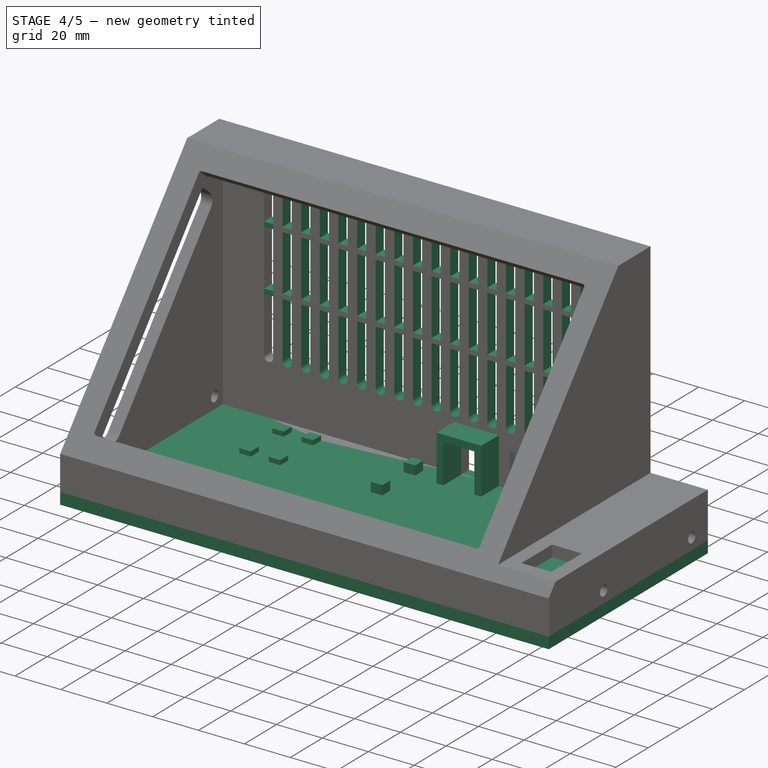
[diagram: stage 4 of 5 — iso view after this stage's code; geometry added in this stage tinted green]
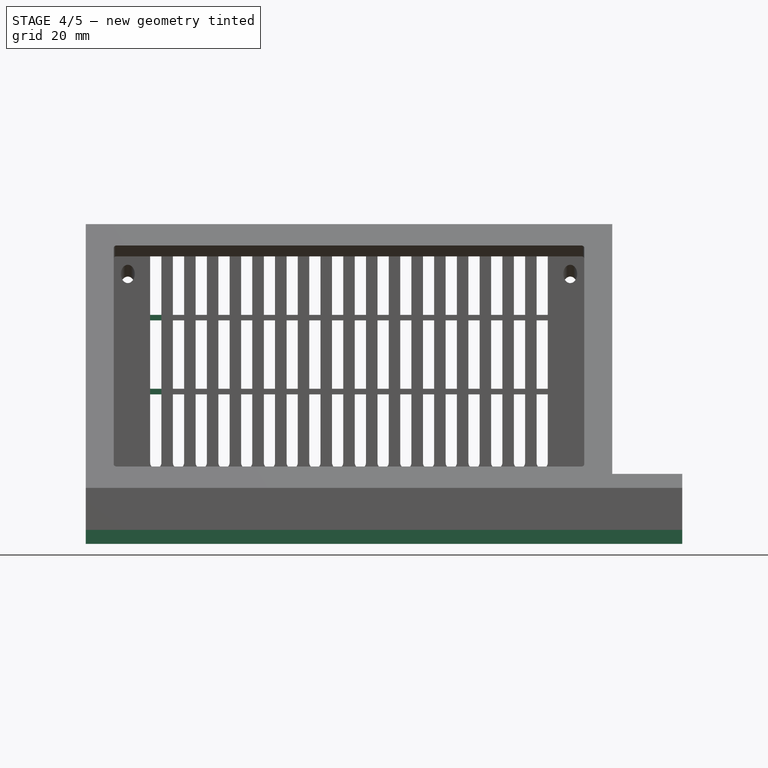
[diagram: stage 4 of 5 — front view after this stage's code; geometry added in this stage tinted green]
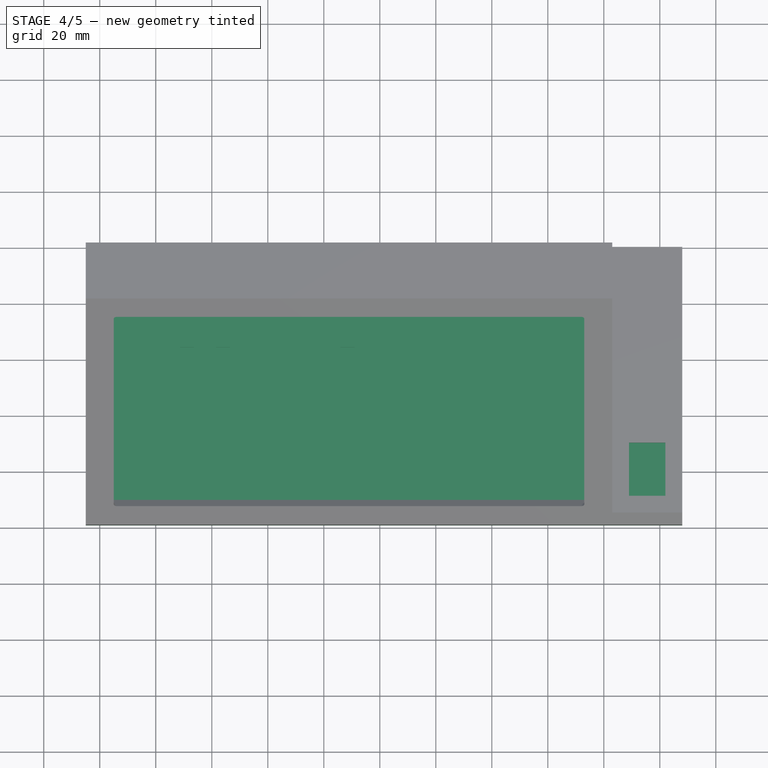
[diagram: stage 4 of 5 — top view after this stage's code; geometry added in this stage tinted green]
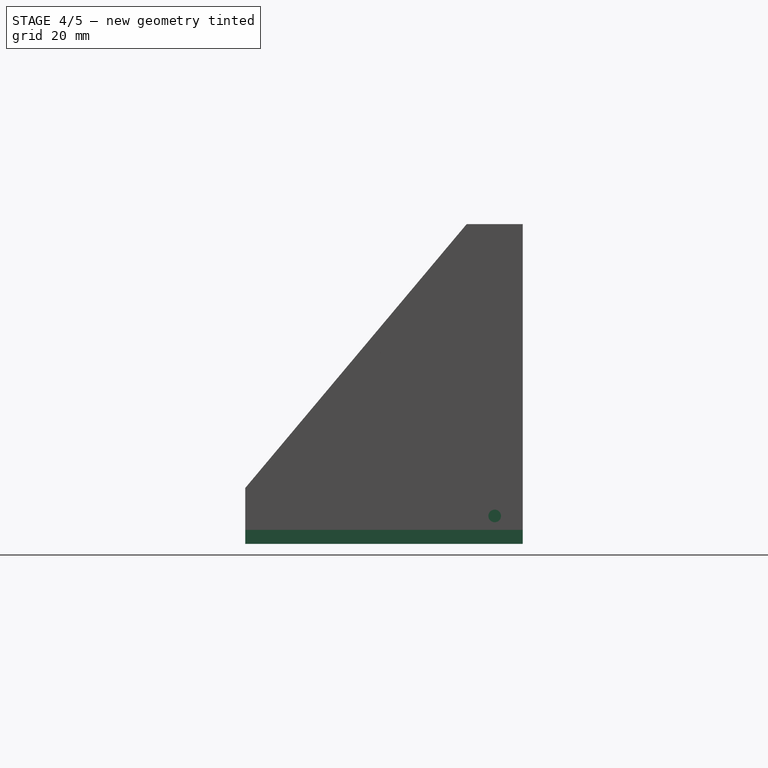
[diagram: stage 4 of 5 — right view after this stage's code; geometry added in this stage tinted green]
FEATURE [Sketcher::SketchObject] Sketch009
  FullyConstrained = true
  MapMode = 5
  Support = -> [XY_Plane003]
  sketch-geometry (4):
    g0: LineSegment StartX=-5 StartY=0 StartZ=0 EndX=208 EndY=0 EndZ=0
    g1: LineSegment StartX=208 StartY=0 StartZ=0 EndX=208 EndY=-99.0629 EndZ=0
    g2: LineSegment StartX=208 StartY=-99.0629 StartZ=0 EndX=-5 EndY=-99.0629 EndZ=0
    g3: LineSegment StartX=-5 StartY=-99.0629 StartZ=0 EndX=-5 EndY=0 EndZ=0
  constraints (12):
    c: Coincident(g0,g1)
    c: Coincident(g1,g2)
    c: Coincident(g2,g3)
    c: Coincident(g3,g0)
    c: Horizontal(g0)
    c: Horizontal(g2)
    c: Vertical(g1)
    c: Vertical(g3)
    c: PointOnObject(g0,g-1)
    c: DistanceX(g0,g-1) = 5
    c: DistanceX(g0,g0) = 213
    c: DistanceY(g2,g0) = 99.0629
FEATURE [PartDesign::Pad] Pad005
  Direction = (1,1,1)
  Length = 5
  Length2 = 100
  Profile = -> Sketch009
  Reversed = true
  Type = 0
FEATURE [Sketcher::SketchObject] Sketch010
  ExternalGeometry = -> [Pad005]
  FullyConstrained = true
  MapMode = 5
  Support = -> [Pad005]
  sketch-geometry (50):
    g0: LineSegment StartX=0 StartY=-5 StartZ=0 EndX=165 EndY=-5 EndZ=0
    g1: LineSegment StartX=165 StartY=-5 StartZ=0 EndX=165 EndY=-94.0629 EndZ=0
    g2: LineSegment StartX=165 StartY=-94.0629 StartZ=0 EndX=0 EndY=-94.0629 EndZ=0
    g3: LineSegment StartX=0 StartY=-94.0629 StartZ=0 EndX=0 EndY=-5 EndZ=0
    g4: LineSegment StartX=56.4 StartY=-10 StartZ=0 EndX=90.9 EndY=-10 EndZ=0
    g5: LineSegment StartX=90.9 StartY=-10 StartZ=0 EndX=90.9 EndY=-35.5 EndZ=0
    g6: LineSegment StartX=90.9 StartY=-35.5 StartZ=0 EndX=56.4 EndY=-35.5 EndZ=0
    g7: LineSegment StartX=56.4 StartY=-35.5 StartZ=0 EndX=56.4 EndY=-10 EndZ=0
    g8: LineSegment StartX=28.6 StartY=-10 StartZ=0 EndX=46.4 EndY=-10 EndZ=0
    g9: LineSegment StartX=46.4 StartY=-10 StartZ=0 EndX=46.4 EndY=-35.5 EndZ=0
    g10: LineSegment StartX=46.4 StartY=-35.5 StartZ=0 EndX=28.6 EndY=-35.5 EndZ=0
    g11: LineSegment StartX=28.6 StartY=-35.5 StartZ=0 EndX=28.6 EndY=-10 EndZ=0
    g12: LineSegment StartX=100.9 StartY=-5 StartZ=0 EndX=103.9 EndY=-5 EndZ=0
    g13: LineSegment StartX=103.9 StartY=-5 StartZ=0 EndX=103.9 EndY=-16 EndZ=0
    g14: LineSegment StartX=103.9 StartY=-16 StartZ=0 EndX=100.9 EndY=-16 EndZ=0
    g15: LineSegment StartX=100.9 StartY=-16 StartZ=0 EndX=100.9 EndY=-5 EndZ=0
    g16: LineSegment StartX=117.4 StartY=-5 StartZ=0 EndX=120.4 EndY=-5 EndZ=0
    g17: LineSegment StartX=120.4 StartY=-5 StartZ=0 EndX=120.4 EndY=-16 EndZ=0
    g18: LineSegment StartX=120.4 StartY=-16 StartZ=0 EndX=117.4 EndY=-16 EndZ=0
    g19: LineSegment StartX=117.4 StartY=-16 StartZ=0 EndX=117.4 EndY=-5 EndZ=0
    g20: LineSegment StartX=90.9 StartY=-10 StartZ=0 EndX=85.9 EndY=-10 EndZ=0
    g21: LineSegment StartX=85.9 StartY=-10 StartZ=0 EndX=85.9 EndY=-15 EndZ=0
    g22: LineSegment StartX=85.9 StartY=-15 StartZ=0 EndX=90.9 EndY=-15 EndZ=0
    g23: LineSegment StartX=90.9 StartY=-15 StartZ=0 EndX=90.9 EndY=-10 EndZ=0
    g24: LineSegment StartX=28.6 StartY=-10 StartZ=0 EndX=33.6 EndY=-10 EndZ=0
    g25: LineSegment StartX=33.6 StartY=-10 StartZ=0 EndX=33.6 EndY=-15 EndZ=0
    g26: LineSegment StartX=33.6 StartY=-15 StartZ=0 EndX=28.6 EndY=-15 EndZ=0
    g27: LineSegment StartX=28.6 StartY=-15 StartZ=0 EndX=28.6 EndY=-10 EndZ=0
    g28: LineSegment StartX=46.4 StartY=-10 StartZ=0 EndX=41.4 EndY=-10 EndZ=0
    g29: LineSegment StartX=41.4 StartY=-10 StartZ=0 EndX=41.4 EndY=-15 EndZ=0
    g30: LineSegment StartX=41.4 StartY=-15 StartZ=0 EndX=46.4 EndY=-15 EndZ=0
    g31: LineSegment StartX=46.4 StartY=-15 StartZ=0 EndX=46.4 EndY=-10 EndZ=0
    g32: LineSegment StartX=28.6 StartY=-35.5 StartZ=0 EndX=33.6 EndY=-35.5 EndZ=0
    g33: LineSegment StartX=33.6 StartY=-35.5 StartZ=0 EndX=33.6 EndY=-30.5 EndZ=0
    g34: LineSegment StartX=33.6 StartY=-30.5 StartZ=0 EndX=28.6 EndY=-30.5 EndZ=0
    g35: LineSegment StartX=28.6 StartY=-30.5 StartZ=0 EndX=28.6 EndY=-35.5 EndZ=0
    g36: LineSegment StartX=41.4 StartY=-30.5 StartZ=0 EndX=46.4 EndY=-30.5 EndZ=0
    g37: LineSegment StartX=46.4 StartY=-30.5 StartZ=0 EndX=46.4 EndY=-35.5 EndZ=0
    g38: LineSegment StartX=46.4 StartY=-35.5 StartZ=0 EndX=41.4 EndY=-35.5 EndZ=0
    g39: LineSegment StartX=41.4 StartY=-35.5 StartZ=0 EndX=41.4 EndY=-30.5 EndZ=0
    g40: LineSegment StartX=90.9 StartY=-35.5 StartZ=0 EndX=85.9 EndY=-35.5 EndZ=0
    g41: LineSegment StartX=85.9 StartY=-35.5 StartZ=0 EndX=85.9 EndY=-30.5 EndZ=0
    g42: LineSegment StartX=85.9 StartY=-30.5 StartZ=0 EndX=90.9 EndY=-30.5 EndZ=0
    g43: LineSegment StartX=90.9 StartY=-30.5 StartZ=0 EndX=90.9 EndY=-35.5 EndZ=0
    g44: LineSegment StartX=130.4 StartY=-5 StartZ=0 EndX=136.4 EndY=-5 EndZ=0
    g45: LineSegment StartX=136.4 StartY=-5 StartZ=0 EndX=136.4 EndY=-10 EndZ=0
    g46: LineSegment StartX=136.4 StartY=-10 StartZ=0 EndX=130.4 EndY=-10 EndZ=0
    g47: LineSegment StartX=130.4 StartY=-10 StartZ=0 EndX=130.4 EndY=-5 EndZ=0
    g48: LineSegment StartX=136.4 StartY=-10 StartZ=0 EndX=165 EndY=-5 EndZ=0
    g49: LineSegment StartX=28.6 StartY=-10 StartZ=0 EndX=0 EndY=-5 EndZ=0
  constraints (142):
    c: Coincident(g0,g1)
    c: Coincident(g1,g2)
    c: Coincident(g2,g3)
    c: Coincident(g3,g0)
    c: Horizontal(g0)
    c: Horizontal(g2)
    c: Vertical(g1)
    c: Vertical(g3)
    c: DistanceY(g0,g-6) = 5
    c: DistanceY(g-5,g2) = 5
    c: DistanceX(g-4,g0) = 5
    c: DistanceX(g0,g0) = 165
    c: Coincident(g4,g5)
    c: Coincident(g5,g6)
    c: Coincident(g6,g7)
    c: Coincident(g7,g4)
    c: Horizontal(g4)
    c: Horizontal(g6)
    c: Vertical(g5)
    c: Vertical(g7)
    c: Coincident(g8,g9)
    c: Coincident(g9,g10)
    c: Coincident(g10,g11)
    c: Coincident(g11,g8)
    c: Horizontal(g8)
    c: Horizontal(g10)
    c: Vertical(g9)
    c: Vertical(g11)
    c: Coincident(g12,g13)
    c: Coincident(g13,g14)
    c: Coincident(g14,g15)
    c: Coincident(g15,g12)
    c: Horizontal(g12)
    c: Horizontal(g14)
    c: Vertical(g13)
    c: Vertical(g15)
    c: PointOnObject(g12,g0)
    c: Coincident(g16,g17)
    c: Coincident(g17,g18)
    c: Coincident(g18,g19)
    c: Coincident(g19,g16)
    c: Horizontal(g16)
    c: Horizontal(g18)
    c: Vertical(g17)
    c: Vertical(g19)
    c: PointOnObject(g16,g0)
    c: Coincident(g20,g21)
    c: Coincident(g21,g22)
    c: Coincident(g22,g23)
    c: Coincident(g23,g20)
    c: Horizontal(g20)
    c: Horizontal(g22)
    c: Vertical(g21)
    c: Vertical(g23)
    c: Coincident(g20,g4)
    c: Coincident(g24,g25)
    c: Coincident(g25,g26)
    c: Coincident(g26,g27)
    c: Coincident(g27,g24)
    c: Horizontal(g24)
    c: Horizontal(g26)
    c: Vertical(g25)
    c: Vertical(g27)
    c: Coincident(g24,g8)
    c: Coincident(g28,g29)
    c: Coincident(g29,g30)
    c: Coincident(g30,g31)
    c: Coincident(g31,g28)
    c: Horizontal(g28)
    c: Horizontal(g30)
    c: Vertical(g29)
    c: Vertical(g31)
    c: Coincident(g28,g8)
    c: Coincident(g32,g33)
    c: Coincident(g33,g34)
    c: Coincident(g34,g35)
    c: Coincident(g35,g32)
    c: Horizontal(g32)
    c: Horizontal(g34)
    c: Vertical(g33)
    c: Vertical(g35)
    c: Coincident(g32,g10)
    c: Coincident(g36,g37)
    c: Coincident(g37,g38)
    c: Coincident(g38,g39)
    c: Coincident(g39,g36)
    c: Horizontal(g36)
    c: Horizontal(g38)
    c: Vertical(g37)
    c: Vertical(g39)
    c: Coincident(g37,g9)
    c: DistanceY(g9,g8) = 25.5
    c: DistanceX(g10,g9) = 17.8
    c: DistanceX(g26,g25) = 5
    c: DistanceY(g25,g24) = 5
    c: Equal(g25,g29)
    c: Equal(g25,g33)
    c: Equal(g25,g39)
    c: Equal(g26,g34)
    c: Equal(g26,g36)
    c: Equal(g26,g30)
    c: DistanceY(g5,g4) = 25.5
    c: DistanceX(g6,g5) = 34.5
    c: DistanceX(g12,g12) = 3
    c: DistanceX(g16,g16) = 3
    c: DistanceX(g12,g16) = 13.5
    c: DistanceY(g13,g12) = 11
    c: Equal(g13,g19)
    c: DistanceX(g8,g4) = 10
    c: DistanceX(g4,g12) = 10
    c: Coincident(g40,g41)
    c: Coincident(g41,g42)
    c: Coincident(g42,g43)
    c: Coincident(g43,g40)
    c: Horizontal(g40)
    c: Horizontal(g42)
    c: Vertical(g41)
    c: Vertical(g43)
    c: Coincident(g40,g5)
    c: DistanceX(g21,g22) = 5
    c: DistanceY(g21,g20) = 5
    c: Equal(g22,g42)
    c: Equal(g41,g21)
    c: DistanceY(g4,g12) = 5
    c: Horizontal(g8,g4)
    c: Coincident(g44,g45)
    c: Coincident(g45,g46)
    c: Coincident(g46,g47)
    c: Coincident(g47,g44)
    c: Horizontal(g44)
    c: Horizontal(g46)
    c: Vertical(g45)
    c: Vertical(g47)
    c: PointOnObject(g44,g0)
    c: DistanceX(g46,g45) = 6
    c: DistanceY(g46,g44) = 5
    c: DistanceX(g16,g44) = 10
    c: Coincident(g48,g45)
    c: Coincident(g48,g0)
    c: Coincident(g49,g8)
    c: Coincident(g49,g0)
    c: Equal(g49,g48)
FEATURE [PartDesign::Pad] Pad006
  BaseFeature = -> Pad005
  Direction = (1,1,1)
  Length = 2
  Length2 = 100
  Profile = -> Sketch010
  Type = 0
FEATURE [Sketcher::SketchObject] Sketch012
  FullyConstrained = true
  MapMode = 5
  Support = -> [Pad006]
  sketch-geometry (50):
    g0: LineSegment StartX=0 StartY=-5 StartZ=0 EndX=165 EndY=-5 EndZ=0
    g1: LineSegment StartX=165 StartY=-5 StartZ=0 EndX=165 EndY=-93.9 EndZ=0
    g2: LineSegment StartX=165 StartY=-93.9 StartZ=0 EndX=0 EndY=-93.9 EndZ=0
    g3: LineSegment StartX=0 StartY=-93.9 StartZ=0 EndX=0 EndY=-5 EndZ=0
    g4: LineSegment StartX=56.4 StartY=-10 StartZ=0 EndX=90.9 EndY=-10 EndZ=0
    g5: LineSegment StartX=90.9 StartY=-10 StartZ=0 EndX=90.9 EndY=-35.5 EndZ=0
    g6: LineSegment StartX=90.9 StartY=-35.5 StartZ=0 EndX=56.4 EndY=-35.5 EndZ=0
    g7: LineSegment StartX=56.4 StartY=-35.5 StartZ=0 EndX=56.4 EndY=-10 EndZ=0
    g8: LineSegment StartX=28.6 StartY=-10 StartZ=0 EndX=46.4 EndY=-10 EndZ=0
    g9: LineSegment StartX=46.4 StartY=-10 StartZ=0 EndX=46.4 EndY=-35.5 EndZ=0
    g10: LineSegment StartX=46.4 StartY=-35.5 StartZ=0 EndX=28.6 EndY=-35.5 EndZ=0
    g11: LineSegment StartX=28.6 StartY=-35.5 StartZ=0 EndX=28.6 EndY=-10 EndZ=0
    g12: LineSegment StartX=100.9 StartY=-5 StartZ=0 EndX=103.9 EndY=-5 EndZ=0
    g13: LineSegment StartX=103.9 StartY=-5 StartZ=0 EndX=103.9 EndY=-16 EndZ=0
    g14: LineSegment StartX=103.9 StartY=-16 StartZ=0 EndX=100.9 EndY=-16 EndZ=0
    g15: LineSegment StartX=100.9 StartY=-16 StartZ=0 EndX=100.9 EndY=-5 EndZ=0
    g16: LineSegment StartX=117.4 StartY=-5 StartZ=0 EndX=120.4 EndY=-5 EndZ=0
    g17: LineSegment StartX=120.4 StartY=-5 StartZ=0 EndX=120.4 EndY=-16 EndZ=0
    g18: LineSegment StartX=120.4 StartY=-16 StartZ=0 EndX=117.4 EndY=-16 EndZ=0
    g19: LineSegment StartX=117.4 StartY=-16 StartZ=0 EndX=117.4 EndY=-5 EndZ=0
    g20: LineSegment StartX=90.9 StartY=-10 StartZ=0 EndX=85.9 EndY=-10 EndZ=0
    g21: LineSegment StartX=85.9 StartY=-10 StartZ=0 EndX=85.9 EndY=-15 EndZ=0
    g22: LineSegment StartX=85.9 StartY=-15 StartZ=0 EndX=90.9 EndY=-15 EndZ=0
    g23: LineSegment StartX=90.9 StartY=-15 StartZ=0 EndX=90.9 EndY=-10 EndZ=0
    g24: LineSegment StartX=28.6 StartY=-10 StartZ=0 EndX=33.6 EndY=-10 EndZ=0
    g25: LineSegment StartX=33.6 StartY=-10 StartZ=0 EndX=33.6 EndY=-15 EndZ=0
    g26: LineSegment StartX=33.6 StartY=-15 StartZ=0 EndX=28.6 EndY=-15 EndZ=0
    g27: LineSegment StartX=28.6 StartY=-15 StartZ=0 EndX=28.6 EndY=-10 EndZ=0
    g28: LineSegment StartX=46.4 StartY=-10 StartZ=0 EndX=41.4 EndY=-10 EndZ=0
    g29: LineSegment StartX=41.4 StartY=-10 StartZ=0 EndX=41.4 EndY=-15 EndZ=0
    g30: LineSegment StartX=41.4 StartY=-15 StartZ=0 EndX=46.4 EndY=-15 EndZ=0
    g31: LineSegment StartX=46.4 StartY=-15 StartZ=0 EndX=46.4 EndY=-10 EndZ=0
    g32: LineSegment StartX=28.6 StartY=-35.5 StartZ=0 EndX=33.6 EndY=-35.5 EndZ=0
    g33: LineSegment StartX=33.6 StartY=-35.5 StartZ=0 EndX=33.6 EndY=-30.5 EndZ=0
    g34: LineSegment StartX=33.6 StartY=-30.5 StartZ=0 EndX=28.6 EndY=-30.5 EndZ=0
    g35: LineSegment StartX=28.6 StartY=-30.5 StartZ=0 EndX=28.6 EndY=-35.5 EndZ=0
    g36: LineSegment StartX=41.4 StartY=-30.5 StartZ=0 EndX=46.4 EndY=-30.5 EndZ=0
    g37: LineSegment StartX=46.4 StartY=-30.5 StartZ=0 EndX=46.4 EndY=-35.5 EndZ=0
    g38: LineSegment StartX=46.4 StartY=-35.5 StartZ=0 EndX=41.4 EndY=-35.5 EndZ=0
    g39: LineSegment StartX=41.4 StartY=-35.5 StartZ=0 EndX=41.4 EndY=-30.5 EndZ=0
    g40: LineSegment StartX=90.9 StartY=-35.5 StartZ=0 EndX=85.9 EndY=-35.5 EndZ=0
    g41: LineSegment StartX=85.9 StartY=-35.5 StartZ=0 EndX=85.9 EndY=-30.5 EndZ=0
    g42: LineSegment StartX=85.9 StartY=-30.5 StartZ=0 EndX=90.9 EndY=-30.5 EndZ=0
    g43: LineSegment StartX=90.9 StartY=-30.5 StartZ=0 EndX=90.9 EndY=-35.5 EndZ=0
    g44: LineSegment StartX=130.4 StartY=-5 StartZ=0 EndX=136.4 EndY=-5 EndZ=0
    g45: LineSegment StartX=136.4 StartY=-5 StartZ=0 EndX=136.4 EndY=-10 EndZ=0
    g46: LineSegment StartX=136.4 StartY=-10 StartZ=0 EndX=130.4 EndY=-10 EndZ=0
    g47: LineSegment StartX=130.4 StartY=-10 StartZ=0 EndX=130.4 EndY=-5 EndZ=0
    g48: LineSegment StartX=136.4 StartY=-10 StartZ=0 EndX=165 EndY=-5 EndZ=0
    g49: LineSegment StartX=28.6 StartY=-10 StartZ=0 EndX=0 EndY=-5 EndZ=0
  constraints (142):
    c: Coincident(g0,g1)
    c: Coincident(g1,g2)
    c: Coincident(g2,g3)
    c: Coincident(g3,g0)
    c: Horizontal(g0)
    c: Horizontal(g2)
    c: Vertical(g1)
    c: Vertical(g3)
    c: DistanceX(g0,g0) = 165
    c: Coincident(g4,g5)
    c: Coincident(g5,g6)
    c: Coincident(g6,g7)
    c: Coincident(g7,g4)
    c: Horizontal(g4)
    c: Horizontal(g6)
    c: Vertical(g5)
    c: Vertical(g7)
    c: Coincident(g8,g9)
    c: Coincident(g9,g10)
    c: Coincident(g10,g11)
    c: Coincident(g11,g8)
    c: Horizontal(g8)
    c: Horizontal(g10)
    c: Vertical(g9)
    c: Vertical(g11)
    c: Coincident(g12,g13)
    c: Coincident(g13,g14)
    c: Coincident(g14,g15)
    c: Coincident(g15,g12)
    c: Horizontal(g12)
    c: Horizontal(g14)
    c: Vertical(g13)
    c: Vertical(g15)
    c: PointOnObject(g12,g0)
    c: Coincident(g16,g17)
    c: Coincident(g17,g18)
    c: Coincident(g18,g19)
    c: Coincident(g19,g16)
    c: Horizontal(g16)
    c: Horizontal(g18)
    c: Vertical(g17)
    c: Vertical(g19)
    c: PointOnObject(g16,g0)
    c: Coincident(g20,g21)
    c: Coincident(g21,g22)
    c: Coincident(g22,g23)
    c: Coincident(g23,g20)
    c: Horizontal(g20)
    c: Horizontal(g22)
    c: Vertical(g21)
    c: Vertical(g23)
    c: Coincident(g20,g4)
    c: Coincident(g24,g25)
    c: Coincident(g25,g26)
    c: Coincident(g26,g27)
    c: Coincident(g27,g24)
    c: Horizontal(g24)
    c: Horizontal(g26)
    c: Vertical(g25)
    c: Vertical(g27)
    c: Coincident(g24,g8)
    c: Coincident(g28,g29)
    c: Coincident(g29,g30)
    c: Coincident(g30,g31)
    c: Coincident(g31,g28)
    c: Horizontal(g28)
    c: Horizontal(g30)
    c: Vertical(g29)
    c: Vertical(g31)
    c: Coincident(g28,g8)
    c: Coincident(g32,g33)
    c: Coincident(g33,g34)
    c: Coincident(g34,g35)
    c: Coincident(g35,g32)
    c: Horizontal(g32)
    c: Horizontal(g34)
    c: Vertical(g33)
    c: Vertical(g35)
    c: Coincident(g32,g10)
    c: Coincident(g36,g37)
    c: Coincident(g37,g38)
    c: Coincident(g38,g39)
    c: Coincident(g39,g36)
    c: Horizontal(g36)
    c: Horizontal(g38)
    c: Vertical(g37)
    c: Vertical(g39)
    c: Coincident(g37,g9)
    c: DistanceY(g9,g8) = 25.5
    c: DistanceX(g10,g9) = 17.8
    c: DistanceX(g26,g25) = 5
    c: DistanceY(g25,g24) = 5
    c: Equal(g25,g29)
    c: Equal(g25,g33)
    c: Equal(g25,g39)
    c: Equal(g26,g34)
    c: Equal(g26,g36)
    c: Equal(g26,g30)
    c: DistanceY(g5,g4) = 25.5
    c: DistanceX(g6,g5) = 34.5
    c: DistanceX(g12,g12) = 3
    c: DistanceX(g16,g16) = 3
    c: DistanceX(g12,g16) = 13.5
    c: DistanceY(g13,g12) = 11
    c: Equal(g13,g19)
    c: DistanceX(g8,g4) = 10
    c: DistanceX(g4,g12) = 10
    c: Coincident(g40,g41)
    c: Coincident(g41,g42)
    c: Coincident(g42,g43)
    c: Coincident(g43,g40)
    c: Horizontal(g40)
    c: Horizontal(g42)
    c: Vertical(g41)
    c: Vertical(g43)
    c: Coincident(g40,g5)
    c: DistanceX(g21,g22) = 5
    c: DistanceY(g21,g20) = 5
    c: Equal(g22,g42)
    c: Equal(g41,g21)
    c: DistanceY(g4,g12) = 5
    c: Horizontal(g8,g4)
    c: Coincident(g44,g45)
    c: Coincident(g45,g46)
    c: Coincident(g46,g47)
    c: Coincident(g47,g44)
    c: Horizontal(g44)
    c: Horizontal(g46)
    c: Vertical(g45)
    c: Vertical(g47)
    c: PointOnObject(g44,g0)
    c: DistanceX(g46,g45) = 6
    c: DistanceY(g46,g44) = 5
    c: DistanceX(g16,g44) = 10
    c: Coincident(g48,g45)
    c: Coincident(g48,g0)
    c: Coincident(g49,g8)
    c: Coincident(g49,g0)
    c: Equal(g49,g48)
    c: DistanceY(g0,g-1) = 5
    c: DistanceX(g-1,g0) = 0
    c: DistanceY(g2,g0) = 88.9
FEATURE [PartDesign::Pad] Pad007
  BaseFeature = -> Pad006
  Direction = (1,1,1)
  Length = 4
  Length2 = 100
  Profile = -> Sketch012
  Type = 0
FEATURE [Sketcher::SketchObject] Sketch013
  FullyConstrained = true
  MapMode = 5
  Support = -> [Pad007]
  sketch-geometry (50):
    g0: LineSegment StartX=0 StartY=-5 StartZ=0 EndX=165 EndY=-5 EndZ=0
    g1: LineSegment StartX=165 StartY=-5 StartZ=0 EndX=165 EndY=-93.9 EndZ=0
    g2: LineSegment StartX=165 StartY=-93.9 StartZ=0 EndX=0 EndY=-93.9 EndZ=0
    g3: LineSegment StartX=0 StartY=-93.9 StartZ=0 EndX=0 EndY=-5 EndZ=0
    g4: LineSegment StartX=56.4 StartY=-10 StartZ=0 EndX=90.9 EndY=-10 EndZ=0
    g5: LineSegment StartX=90.9 StartY=-10 StartZ=0 EndX=90.9 EndY=-35.5 EndZ=0
    g6: LineSegment StartX=90.9 StartY=-35.5 StartZ=0 EndX=56.4 EndY=-35.5 EndZ=0
    g7: LineSegment StartX=56.4 StartY=-35.5 StartZ=0 EndX=56.4 EndY=-10 EndZ=0
    g8: LineSegment StartX=28.6 StartY=-10 StartZ=0 EndX=46.4 EndY=-10 EndZ=0
    g9: LineSegment StartX=46.4 StartY=-10 StartZ=0 EndX=46.4 EndY=-35.5 EndZ=0
    g10: LineSegment StartX=46.4 StartY=-35.5 StartZ=0 EndX=28.6 EndY=-35.5 EndZ=0
    g11: LineSegment StartX=28.6 StartY=-35.5 StartZ=0 EndX=28.6 EndY=-10 EndZ=0
    g12: LineSegment StartX=100.9 StartY=-5 StartZ=0 EndX=103.9 EndY=-5 EndZ=0
    g13: LineSegment StartX=103.9 StartY=-5 StartZ=0 EndX=103.9 EndY=-16 EndZ=0
    g14: LineSegment StartX=103.9 StartY=-16 StartZ=0 EndX=100.9 EndY=-16 EndZ=0
    g15: LineSegment StartX=100.9 StartY=-16 StartZ=0 EndX=100.9 EndY=-5 EndZ=0
    g16: LineSegment StartX=117.4 StartY=-5 StartZ=0 EndX=120.4 EndY=-5 EndZ=0
    g17: LineSegment StartX=120.4 StartY=-5 StartZ=0 EndX=120.4 EndY=-16 EndZ=0
    g18: LineSegment StartX=120.4 StartY=-16 StartZ=0 EndX=117.4 EndY=-16 EndZ=0
    g19: LineSegment StartX=117.4 StartY=-16 StartZ=0 EndX=117.4 EndY=-5 EndZ=0
    g20: LineSegment StartX=90.9 StartY=-10 StartZ=0 EndX=85.9 EndY=-10 EndZ=0
    g21: LineSegment StartX=85.9 StartY=-10 StartZ=0 EndX=85.9 EndY=-15 EndZ=0
    g22: LineSegment StartX=85.9 StartY=-15 StartZ=0 EndX=90.9 EndY=-15 EndZ=0
    g23: LineSegment StartX=90.9 StartY=-15 StartZ=0 EndX=90.9 EndY=-10 EndZ=0
    g24: LineSegment StartX=28.6 StartY=-10 StartZ=0 EndX=33.6 EndY=-10 EndZ=0
    g25: LineSegment StartX=33.6 StartY=-10 StartZ=0 EndX=33.6 EndY=-15 EndZ=0
    g26: LineSegment StartX=33.6 StartY=-15 StartZ=0 EndX=28.6 EndY=-15 EndZ=0
    g27: LineSegment StartX=28.6 StartY=-15 StartZ=0 EndX=28.6 EndY=-10 EndZ=0
    g28: LineSegment StartX=46.4 StartY=-10 StartZ=0 EndX=41.4 EndY=-10 EndZ=0
    g29: LineSegment StartX=41.4 StartY=-10 StartZ=0 EndX=41.4 EndY=-15 EndZ=0
    g30: LineSegment StartX=41.4 StartY=-15 StartZ=0 EndX=46.4 EndY=-15 EndZ=0
    g31: LineSegment StartX=46.4 StartY=-15 StartZ=0 EndX=46.4 EndY=-10 EndZ=0
    g32: LineSegment StartX=28.6 StartY=-35.5 StartZ=0 EndX=33.6 EndY=-35.5 EndZ=0
    g33: LineSegment StartX=33.6 StartY=-35.5 StartZ=0 EndX=33.6 EndY=-30.5 EndZ=0
    g34: LineSegment StartX=33.6 StartY=-30.5 StartZ=0 EndX=28.6 EndY=-30.5 EndZ=0
    g35: LineSegment StartX=28.6 StartY=-30.5 StartZ=0 EndX=28.6 EndY=-35.5 EndZ=0
    g36: LineSegment StartX=41.4 StartY=-30.5 StartZ=0 EndX=46.4 EndY=-30.5 EndZ=0
    g37: LineSegment StartX=46.4 StartY=-30.5 StartZ=0 EndX=46.4 EndY=-35.5 EndZ=0
    g38: LineSegment StartX=46.4 StartY=-35.5 StartZ=0 EndX=41.4 EndY=-35.5 EndZ=0
    g39: LineSegment StartX=41.4 StartY=-35.5 StartZ=0 EndX=41.4 EndY=-30.5 EndZ=0
    g40: LineSegment StartX=90.9 StartY=-35.5 StartZ=0 EndX=85.9 EndY=-35.5 EndZ=0
    g41: LineSegment StartX=85.9 StartY=-35.5 StartZ=0 EndX=85.9 EndY=-30.5 EndZ=0
    g42: LineSegment StartX=85.9 StartY=-30.5 StartZ=0 EndX=90.9 EndY=-30.5 EndZ=0
    g43: LineSegment StartX=90.9 StartY=-30.5 StartZ=0 EndX=90.9 EndY=-35.5 EndZ=0
    g44: LineSegment StartX=130.4 StartY=-5 StartZ=0 EndX=136.4 EndY=-5 EndZ=0
    g45: LineSegment StartX=136.4 StartY=-5 StartZ=0 EndX=136.4 EndY=-10 EndZ=0
    g46: LineSegment StartX=136.4 StartY=-10 StartZ=0 EndX=130.4 EndY=-10 EndZ=0
    g47: LineSegment StartX=130.4 StartY=-10 StartZ=0 EndX=130.4 EndY=-5 EndZ=0
    g48: LineSegment StartX=136.4 StartY=-10 StartZ=0 EndX=165 EndY=-5 EndZ=0
    g49: LineSegment StartX=28.6 StartY=-10 StartZ=0 EndX=0 EndY=-5 EndZ=0
  constraints (142):
    c: Coincident(g0,g1)
    c: Coincident(g1,g2)
    c: Coincident(g2,g3)
    c: Coincident(g3,g0)
    c: Horizontal(g0)
    c: Horizontal(g2)
    c: Vertical(g1)
    c: Vertical(g3)
    c: DistanceX(g0,g0) = 165
    c: Coincident(g4,g5)
    c: Coincident(g5,g6)
    c: Coincident(g6,g7)
    c: Coincident(g7,g4)
    c: Horizontal(g4)
    c: Horizontal(g6)
    c: Vertical(g5)
    c: Vertical(g7)
    c: Coincident(g8,g9)
    c: Coincident(g9,g10)
    c: Coincident(g10,g11)
    c: Coincident(g11,g8)
    c: Horizontal(g8)
    c: Horizontal(g10)
    c: Vertical(g9)
    c: Vertical(g11)
    c: Coincident(g12,g13)
    c: Coincident(g13,g14)
    c: Coincident(g14,g15)
    c: Coincident(g15,g12)
    c: Horizontal(g12)
    c: Horizontal(g14)
    c: Vertical(g13)
    c: Vertical(g15)
    c: PointOnObject(g12,g0)
    c: Coincident(g16,g17)
    c: Coincident(g17,g18)
    c: Coincident(g18,g19)
    c: Coincident(g19,g16)
    c: Horizontal(g16)
    c: Horizontal(g18)
    c: Vertical(g17)
    c: Vertical(g19)
    c: PointOnObject(g16,g0)
    c: Coincident(g20,g21)
    c: Coincident(g21,g22)
    c: Coincident(g22,g23)
    c: Coincident(g23,g20)
    c: Horizontal(g20)
    c: Horizontal(g22)
    c: Vertical(g21)
    c: Vertical(g23)
    c: Coincident(g20,g4)
    c: Coincident(g24,g25)
    c: Coincident(g25,g26)
    c: Coincident(g26,g27)
    c: Coincident(g27,g24)
    c: Horizontal(g24)
    c: Horizontal(g26)
    c: Vertical(g25)
    c: Vertical(g27)
    c: Coincident(g24,g8)
    c: Coincident(g28,g29)
    c: Coincident(g29,g30)
    c: Coincident(g30,g31)
    c: Coincident(g31,g28)
    c: Horizontal(g28)
    c: Horizontal(g30)
    c: Vertical(g29)
    c: Vertical(g31)
    c: Coincident(g28,g8)
    c: Coincident(g32,g33)
    c: Coincident(g33,g34)
    c: Coincident(g34,g35)
    c: Coincident(g35,g32)
    c: Horizontal(g32)
    c: Horizontal(g34)
    c: Vertical(g33)
    c: Vertical(g35)
    c: Coincident(g32,g10)
    c: Coincident(g36,g37)
    c: Coincident(g37,g38)
    c: Coincident(g38,g39)
    c: Coincident(g39,g36)
    c: Horizontal(g36)
    c: Horizontal(g38)
    c: Vertical(g37)
    c: Vertical(g39)
    c: Coincident(g37,g9)
    c: DistanceY(g9,g8) = 25.5
    c: DistanceX(g10,g9) = 17.8
    c: DistanceX(g26,g25) = 5
    c: DistanceY(g25,g24) = 5
    c: Equal(g25,g29)
    c: Equal(g25,g33)
    c: Equal(g25,g39)
    c: Equal(g26,g34)
    c: Equal(g26,g36)
    c: Equal(g26,g30)
    c: DistanceY(g5,g4) = 25.5
    c: DistanceX(g6,g5) = 34.5
    c: DistanceX(g12,g12) = 3
    c: DistanceX(g16,g16) = 3
    c: DistanceX(g12,g16) = 13.5
    c: DistanceY(g13,g12) = 11
    c: Equal(g13,g19)
    c: DistanceX(g8,g4) = 10
    c: DistanceX(g4,g12) = 10
    c: Coincident(g40,g41)
    c: Coincident(g41,g42)
    c: Coincident(g42,g43)
    c: Coincident(g43,g40)
    c: Horizontal(g40)
    c: Horizontal(g42)
    c: Vertical(g41)
    c: Vertical(g43)
    c: Coincident(g40,g5)
    c: DistanceX(g21,g22) = 5
    c: DistanceY(g21,g20) = 5
    c: Equal(g22,g42)
    c: Equal(g41,g21)
    c: DistanceY(g4,g12) = 5
    c: Horizontal(g8,g4)
    c: Coincident(g44,g45)
    c: Coincident(g45,g46)
    c: Coincident(g46,g47)
    c: Coincident(g47,g44)
    c: Horizontal(g44)
    c: Horizontal(g46)
    c: Vertical(g45)
    c: Vertical(g47)
    c: PointOnObject(g44,g0)
    c: DistanceX(g46,g45) = 6
    c: DistanceY(g46,g44) = 5
    c: DistanceX(g16,g44) = 10
    c: Coincident(g48,g45)
    c: Coincident(g48,g0)
    c: Coincident(g49,g8)
    c: Coincident(g49,g0)
    c: Equal(g49,g48)
    c: DistanceY(g0,g-1) = 5
    c: DistanceX(g-1,g0) = 0
    c: DistanceY(g2,g0) = 88.9
FEATURE [PartDesign::Pad] Pad008
  BaseFeature = -> Pad007
  Direction = (1,1,1)
  Length = 17
  Length2 = 100
  Profile = -> Sketch013
  Type = 0
FEATURE [Sketcher::SketchObject] Sketch014
  ExternalGeometry = -> [Pad008]
  FullyConstrained = true
  MapMode = 5
  Placement = pos=(0,0,17) rot=(0,0,1;0rad)
  Support = -> [Pad008]
  sketch-geometry (4):
    g0: LineSegment StartX=100.9 StartY=-5 StartZ=0 EndX=120.4 EndY=-5 EndZ=0
    g1: LineSegment StartX=120.4 StartY=-5 StartZ=0 EndX=120.4 EndY=-16 EndZ=0
    g2: LineSegment StartX=120.4 StartY=-16 StartZ=0 EndX=100.9 EndY=-16 EndZ=0
    g3: LineSegment StartX=100.9 StartY=-16 StartZ=0 EndX=100.9 EndY=-5 EndZ=0
  constraints (10):
    c: Coincident(g0,g1)
    c: Coincident(g1,g2)
    c: Coincident(g2,g3)
    c: Coincident(g3,g0)
    c: Horizontal(g0)
    c: Horizontal(g2)
    c: Vertical(g1)
    c: Vertical(g3)
    c: Coincident(g0,g-3)
    c: Coincident(g1,g-4)
FEATURE [PartDesign::Pad] Pad009
  BaseFeature = -> Pad008
  Direction = (1,1,1)
  Length = 3
  Length2 = 100
  Profile = -> Sketch014
  Type = 0
FEATURE [PartDesign::LinearPattern] LinearPattern
  BaseFeature = -> Pocket019
  Direction = -> Sketch032 [V_Axis]
  Length = 138
  Occurrences = 18
  Originals = -> [Pocket019]
  Placement = pos=(0,0,0) rot=(0.57735,0.57735,0.57735;2.0944rad)
FEATURE [Sketcher::SketchObject] Sketch033
  ExternalGeometry = -> [LinearPattern]
  FullyConstrained = true
  MapMode = 5
  Placement = pos=(0,0,0) rot=(0.57735,0.57735,0.57735;4.18879rad)
  Support = -> [LinearPattern]
  sketch-geometry (11):
    g0: LineSegment StartX=48.4078 StartY=160 StartZ=0 EndX=50.4078 EndY=160 EndZ=0
    g1: LineSegment StartX=50.4078 StartY=160 StartZ=0 EndX=50.4078 EndY=18 EndZ=0
    g2: LineSegment StartX=50.4078 StartY=18 StartZ=0 EndX=48.4078 EndY=18 EndZ=0
    g3: LineSegment StartX=48.4078 StartY=18 StartZ=0 EndX=48.4078 EndY=160 EndZ=0
    g4: LineSegment StartX=74.8156 StartY=160 StartZ=0 EndX=76.8156 EndY=160 EndZ=0
    g5: LineSegment StartX=76.8156 StartY=160 StartZ=0 EndX=76.8156 EndY=18 EndZ=0
    g6: LineSegment StartX=76.8156 StartY=18 StartZ=0 EndX=74.8156 EndY=18 EndZ=0
    g7: LineSegment StartX=74.8156 StartY=18 StartZ=0 EndX=74.8156 EndY=160 EndZ=0
    g8: LineSegment StartX=24 StartY=160 StartZ=0 EndX=48.4078 EndY=160 EndZ=0
    g9: LineSegment StartX=50.4078 StartY=160 StartZ=0 EndX=74.8156 EndY=160 EndZ=0
    g10: LineSegment StartX=76.8156 StartY=160 StartZ=0 EndX=101.223 EndY=160 EndZ=0
  constraints (29):
    c: Coincident(g0,g1)
    c: Coincident(g1,g2)
    c: Coincident(g2,g3)
    c: Coincident(g3,g0)
    c: Horizontal(g0)
    c: Horizontal(g2)
    c: Vertical(g1)
    c: Vertical(g3)
    c: PointOnObject(g1,g-5)
    c: Coincident(g4,g5)
    c: Coincident(g5,g6)
    c: Coincident(g6,g7)
    c: Coincident(g7,g4)
    c: Horizontal(g4)
    c: Vertical(g5)
    c: Vertical(g7)
    c: Coincident(g8,g-4)
    c: Coincident(g8,g0)
    c: Coincident(g9,g0)
    c: Coincident(g9,g4)
    c: Horizontal(g9)
    c: Coincident(g10,g4)
    c: Coincident(g10,g-4)
    c: DistanceX(g0,g0) = 2
    c: DistanceX(g4,g4) = 2
    c: Horizontal(g8)
    c: Equal(g8,g9)
    c: Equal(g10,g9)
    c: Tangent(g-5,g6)
FEATURE [PartDesign::Pad] Pad012
  BaseFeature = -> LinearPattern
  Direction = (1,1,1)
  Length = 5
  Length2 = 100
  Placement = pos=(0,0,0) rot=(0.57735,0.57735,0.57735;2.0944rad)
  Profile = -> Sketch033
  Reversed = true
  Type = 0
FEATURE [PartDesign::Body] Body
  Group = -> [Sketch,Pad,Sketch001,Pocket,Fillet,Sketch002,Pocket001,Sketch003,Pad001,Sketch004,Pad002,Sketch005,Pad003,Sketch006,Pad004,Sketch007,Pocket002,Sketch008,Pocket003,Sketch018,Pocket007,Sketch019,Pocket008,Sketch020,Pocket009,Sketch024,Pocket012,Sketch025,Pocket013,Sketch026,Pocket014,Sketch027,Pocket015,Sketch029,Pocket017,Sketch030,Pocket018,Sketch031,Pad011,Fillet001,Sketch032,Pocket019,+3 more]
  Origin = -> Origin
  Tip = -> Pad012
FEATURE [App::Part] Part  label="Top"
  Group = -> [Body]
  Origin = -> Origin001
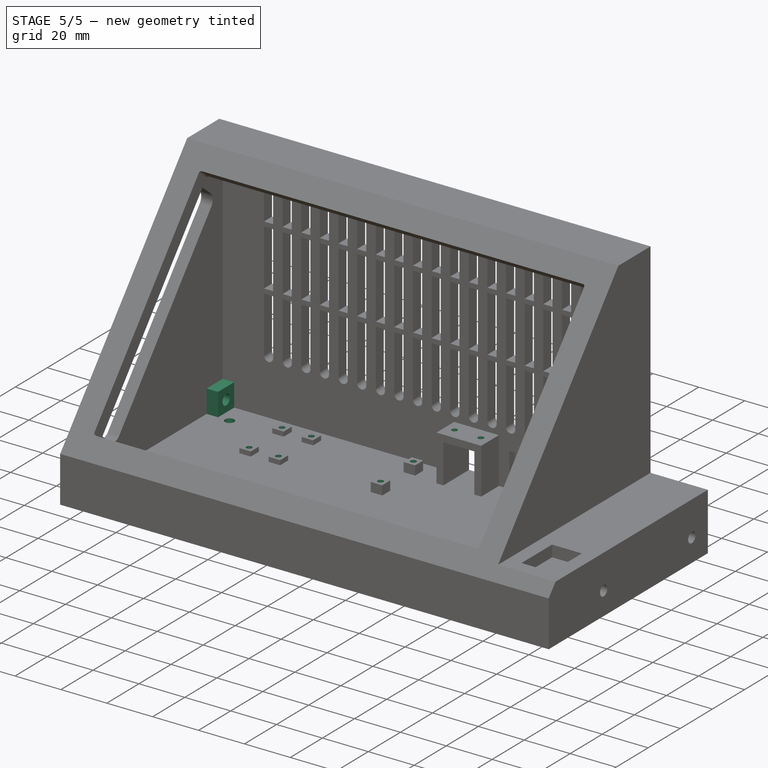
[diagram: stage 5 of 5 — iso view after this stage's code; geometry added in this stage tinted green]
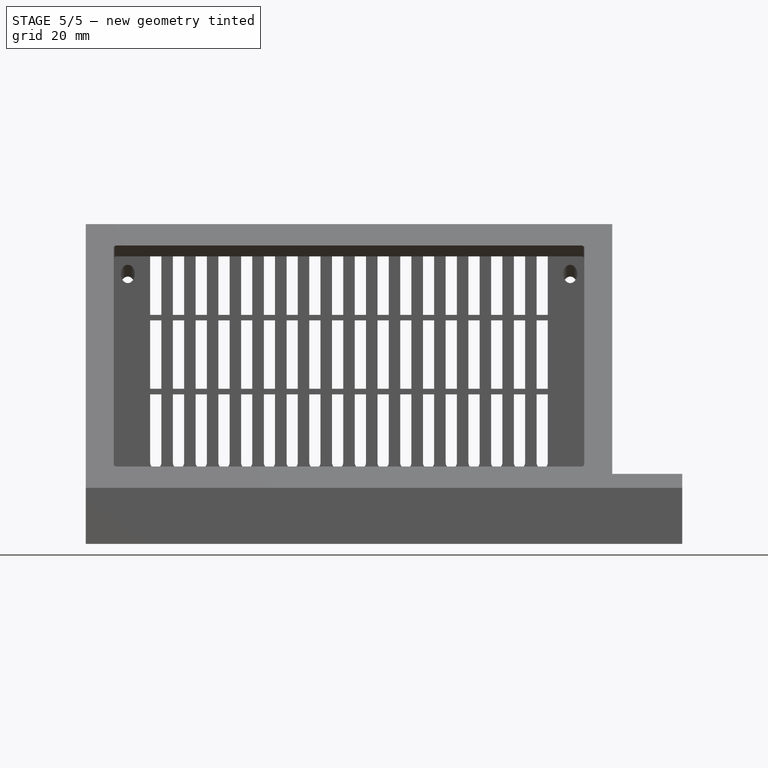
[diagram: stage 5 of 5 — front view after this stage's code; geometry added in this stage tinted green]
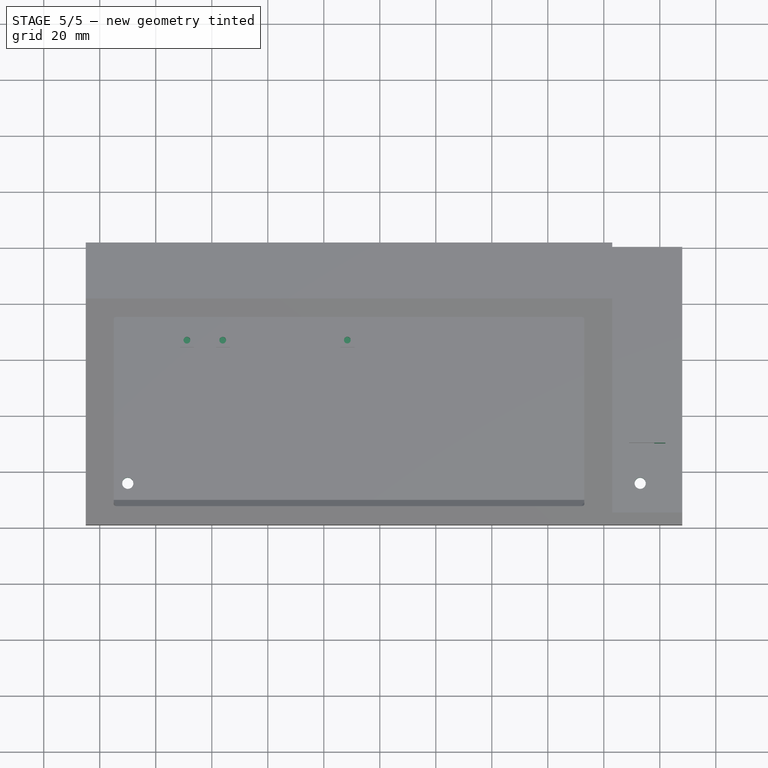
[diagram: stage 5 of 5 — top view after this stage's code; geometry added in this stage tinted green]
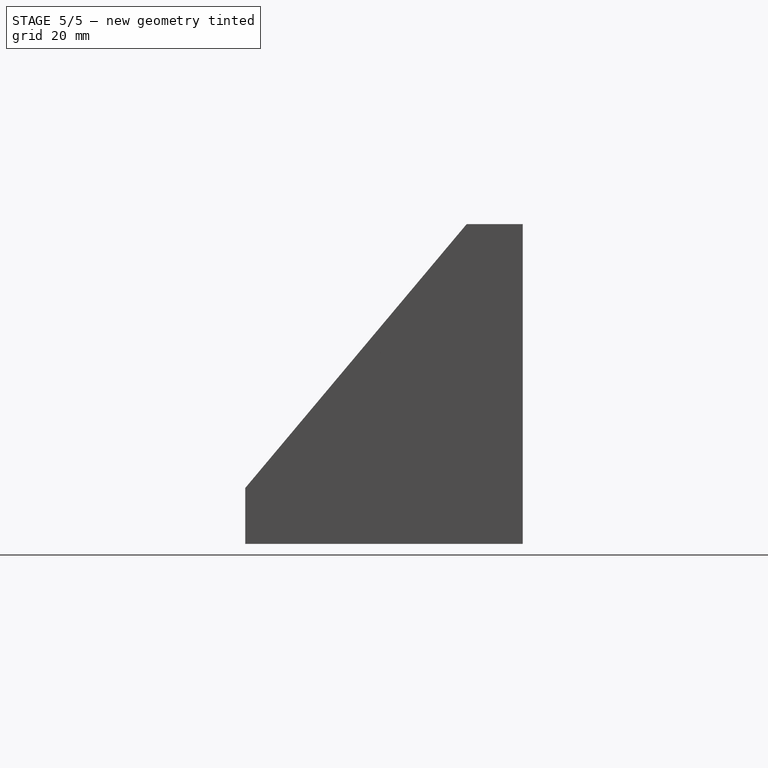
[diagram: stage 5 of 5 — right view after this stage's code; geometry added in this stage tinted green]
FEATURE [Sketcher::SketchObject] Sketch015
  ExternalGeometry = -> [Pad009]
  FullyConstrained = true
  MapMode = 5
  Placement = pos=(0,0,20) rot=(0,0,1;0rad)
  Support = -> [Pad009]
  sketch-geometry (6):
    g0: Circle CenterX=104.9 CenterY=-10.5 CenterZ=0 NormalX=0 NormalY=0 NormalZ=1 AngleXU=0 Radius=1.2
    g1: Circle CenterX=116.4 CenterY=-10.5 CenterZ=0 NormalX=0 NormalY=0 NormalZ=1 AngleXU=0 Radius=1.2
    g2: LineSegment StartX=104.9 StartY=-10.5 StartZ=0 EndX=100.9 EndY=-5 EndZ=0
    g3: LineSegment StartX=100.9 StartY=-16 StartZ=0 EndX=104.9 EndY=-10.5 EndZ=0
    g4: LineSegment StartX=116.4 StartY=-10.5 StartZ=0 EndX=120.4 EndY=-16 EndZ=0
    g5: LineSegment StartX=116.4 StartY=-10.5 StartZ=0 EndX=120.4 EndY=-5 EndZ=0
  constraints (14):
    c: Coincident(g2,g0)
    c: Coincident(g2,g-3)
    c: Coincident(g3,g-3)
    c: Coincident(g3,g0)
    c: Coincident(g4,g1)
    c: Coincident(g4,g-4)
    c: Coincident(g5,g1)
    c: Coincident(g5,g-4)
    c: DistanceX(g2,g0) = 4
    c: DistanceX(g1,g5) = 4
    c: Equal(g2,g3)
    c: Equal(g5,g4)
    c: Radius(g0) = 1.2
    c: Radius(g1) = 1.2
FEATURE [PartDesign::Pocket] Pocket004
  BaseFeature = -> Pad009
  Direction = (1,1,1)
  Length = 5
  Length2 = 100
  Profile = -> Sketch015
  Type = 0
FEATURE [Sketcher::SketchObject] Sketch016
  ExternalGeometry = -> [Pocket004]
  FullyConstrained = true
  MapMode = 5
  Placement = pos=(0,0,4) rot=(0,0,1;0rad)
  Support = -> [Pocket004]
  sketch-geometry (6):
    g0: Circle CenterX=88.4 CenterY=-12.5 CenterZ=0 NormalX=0 NormalY=0 NormalZ=1 AngleXU=0 Radius=1.2
    g1: Circle CenterX=88.4 CenterY=-33 CenterZ=0 NormalX=0 NormalY=0 NormalZ=1 AngleXU=0 Radius=1.2
    g2: LineSegment StartX=85.9 StartY=-10 StartZ=0 EndX=88.4 EndY=-12.5 EndZ=0
    g3: LineSegment StartX=90.9 StartY=-15 StartZ=0 EndX=88.4 EndY=-12.5 EndZ=0
    g4: LineSegment StartX=85.9 StartY=-30.5 StartZ=0 EndX=88.4 EndY=-33 EndZ=0
    g5: LineSegment StartX=90.9 StartY=-35.5 StartZ=0 EndX=88.4 EndY=-33 EndZ=0
  constraints (14):
    c: Radius(g0) = 1.2
    c: Radius(g1) = 1.2
    c: Coincident(g2,g-3)
    c: Coincident(g2,g0)
    c: Coincident(g3,g-4)
    c: Coincident(g3,g0)
    c: Coincident(g4,g-5)
    c: Coincident(g4,g1)
    c: Coincident(g5,g-6)
    c: Coincident(g5,g1)
    c: Equal(g2,g3)
    c: Equal(g4,g5)
    c: Parallel(g2,g3)
    c: Parallel(g4,g5)
FEATURE [PartDesign::Pocket] Pocket005
  BaseFeature = -> Pocket004
  Direction = (1,1,1)
  Length = 5
  Length2 = 100
  Profile = -> Sketch016
  Type = 0
FEATURE [Sketcher::SketchObject] Sketch017
  ExternalGeometry = -> [Pocket005]
  FullyConstrained = true
  MapMode = 5
  Placement = pos=(0,0,2) rot=(0,0,1;0rad)
  Support = -> [Pocket005]
  sketch-geometry (12):
    g0: Circle CenterX=31.1 CenterY=-12.5 CenterZ=0 NormalX=0 NormalY=0 NormalZ=1 AngleXU=0 Radius=1.2
    g1: Circle CenterX=43.9 CenterY=-12.5 CenterZ=0 NormalX=0 NormalY=0 NormalZ=1 AngleXU=0 Radius=1.2
    g2: Circle CenterX=31.1 CenterY=-33 CenterZ=0 NormalX=0 NormalY=0 NormalZ=1 AngleXU=0 Radius=1.2
    g3: Circle CenterX=43.9 CenterY=-33 CenterZ=0 NormalX=0 NormalY=0 NormalZ=1 AngleXU=0 Radius=1.2
    g4: LineSegment StartX=28.6 StartY=-10 StartZ=0 EndX=31.1 EndY=-12.5 EndZ=0
    g5: LineSegment StartX=33.6 StartY=-15 StartZ=0 EndX=31.1 EndY=-12.5 EndZ=0
    g6: LineSegment StartX=41.4 StartY=-10 StartZ=0 EndX=43.9 EndY=-12.5 EndZ=0
    g7: LineSegment StartX=46.4 StartY=-15 StartZ=0 EndX=43.9 EndY=-12.5 EndZ=0
    g8: LineSegment StartX=28.6 StartY=-30.5 StartZ=0 EndX=31.1 EndY=-33 EndZ=0
    g9: LineSegment StartX=33.6 StartY=-35.5 StartZ=0 EndX=31.1 EndY=-33 EndZ=0
    g10: LineSegment StartX=41.4 StartY=-30.5 StartZ=0 EndX=43.9 EndY=-33 EndZ=0
    g11: LineSegment StartX=46.4 StartY=-35.5 StartZ=0 EndX=43.9 EndY=-33 EndZ=0
  constraints (28):
    c: Coincident(g4,g-3)
    c: Coincident(g4,g0)
    c: Coincident(g5,g-4)
    c: Coincident(g5,g0)
    c: Coincident(g6,g-9)
    c: Coincident(g6,g1)
    c: Coincident(g7,g-10)
    c: Coincident(g7,g1)
    c: Coincident(g8,g-5)
    c: Coincident(g8,g2)
    c: Coincident(g9,g-6)
    c: Coincident(g9,g2)
    c: Coincident(g10,g-7)
    c: Coincident(g10,g3)
    c: Coincident(g11,g-8)
    c: Coincident(g11,g3)
    c: Parallel(g4,g5)
    c: Parallel(g6,g7)
    c: Parallel(g8,g9)
    c: Parallel(g10,g11)
    c: Equal(g4,g5)
    c: Equal(g6,g7)
    c: Equal(g8,g9)
    c: Equal(g10,g11)
    c: Radius(g0) = 1.2
    c: Equal(g0,g2)
    c: Equal(g0,g3)
    c: Equal(g0,g1)
FEATURE [PartDesign::Pocket] Pocket006
  BaseFeature = -> Pocket005
  Direction = (1,1,1)
  Length = 5
  Length2 = 100
  Profile = -> Sketch017
  Type = 0
FEATURE [Sketcher::SketchObject] Sketch021
  ExternalGeometry = -> [Pocket006]
  FullyConstrained = true
  MapMode = 5
  Support = -> [Pocket006]
  sketch-geometry (16):
    g0: LineSegment StartX=0 StartY=-5 StartZ=0 EndX=5 EndY=-5 EndZ=0
    g1: LineSegment StartX=5 StartY=-5 StartZ=0 EndX=5 EndY=-15 EndZ=0
    g2: LineSegment StartX=5 StartY=-15 StartZ=0 EndX=0 EndY=-15 EndZ=0
    g3: LineSegment StartX=0 StartY=-15 StartZ=0 EndX=0 EndY=-5 EndZ=0
    g4: LineSegment StartX=0 StartY=-84.0629 StartZ=0 EndX=5 EndY=-84.0629 EndZ=0
    g5: LineSegment StartX=5 StartY=-84.0629 StartZ=0 EndX=5 EndY=-94.0629 EndZ=0
    g6: LineSegment StartX=5 StartY=-94.0629 StartZ=0 EndX=0 EndY=-94.0629 EndZ=0
    g7: LineSegment StartX=0 StartY=-94.0629 StartZ=0 EndX=0 EndY=-84.0629 EndZ=0
    g8: LineSegment StartX=198 StartY=-59.8629 StartZ=0 EndX=203 EndY=-59.8629 EndZ=0
    g9: LineSegment StartX=203 StartY=-59.8629 StartZ=0 EndX=203 EndY=-69.8629 EndZ=0
    g10: LineSegment StartX=203 StartY=-69.8629 StartZ=0 EndX=198 EndY=-69.8629 EndZ=0
    g11: LineSegment StartX=198 StartY=-69.8629 StartZ=0 EndX=198 EndY=-59.8629 EndZ=0
    g12: LineSegment StartX=198 StartY=-5 StartZ=0 EndX=203 EndY=-5 EndZ=0
    g13: LineSegment StartX=203 StartY=-5 StartZ=0 EndX=203 EndY=-15 EndZ=0
    g14: LineSegment StartX=203 StartY=-15 StartZ=0 EndX=198 EndY=-15 EndZ=0
    g15: LineSegment StartX=198 StartY=-15 StartZ=0 EndX=198 EndY=-5 EndZ=0
  constraints (48):
    c: Coincident(g0,g1)
    c: Coincident(g1,g2)
    c: Coincident(g2,g3)
    c: Coincident(g3,g0)
    c: Horizontal(g0)
    c: Horizontal(g2)
    c: Vertical(g1)
    c: Vertical(g3)
    c: Coincident(g4,g5)
    c: Coincident(g5,g6)
    c: Coincident(g6,g7)
    c: Coincident(g7,g4)
    c: Horizontal(g4)
    c: Horizontal(g6)
    c: Vertical(g5)
    c: Vertical(g7)
    c: Coincident(g8,g9)
    c: Coincident(g9,g10)
    c: Coincident(g10,g11)
    c: Coincident(g11,g8)
    c: Horizontal(g8)
    c: Horizontal(g10)
    c: Vertical(g9)
    c: Vertical(g11)
    c: Coincident(g12,g13)
    c: Coincident(g13,g14)
    c: Coincident(g14,g15)
    c: Coincident(g15,g12)
    c: Horizontal(g12)
    c: Horizontal(g14)
    c: Vertical(g13)
    c: Vertical(g15)
    c: DistanceY(g1,g0) = 10
    c: DistanceY(g5,g4) = 10
    c: DistanceY(g10,g8) = 10
    c: DistanceY(g14,g12) = 10
    c: DistanceX(g-3,g0) = 5
    c: DistanceX(g-4,g6) = 5
    c: DistanceX(g9,g-4) = 5
    c: DistanceX(g12,g-3) = 5
    c: DistanceY(g12,g-3) = 5
    c: DistanceY(g-4,g9) = 29.2
    c: DistanceY(g-4,g6) = 5
    c: DistanceY(g0,g-3) = 5
    c: DistanceX(g2,g1) = 5
    c: DistanceX(g14,g13) = 5
    c: DistanceX(g8,g8) = 5
    c: DistanceX(g4,g4) = 5
FEATURE [PartDesign::Pad] Pad010
  BaseFeature = -> Pocket006
  Direction = (1,1,1)
  Length = 10
  Length2 = 100
  Profile = -> Sketch021
  Type = 0
FEATURE [Sketcher::SketchObject] Sketch022
  ExternalGeometry = -> [Pad010]
  FullyConstrained = true
  MapMode = 5
  Placement = pos=(203,0,0) rot=(0.57735,0.57735,0.57735;2.0944rad)
  Support = -> [Pad010]
  sketch-geometry (6):
    g0: Circle CenterX=-64.8629 CenterY=5 CenterZ=0 NormalX=0 NormalY=0 NormalZ=1 AngleXU=0 Radius=2.25
    g1: Circle CenterX=-10 CenterY=5 CenterZ=0 NormalX=0 NormalY=0 NormalZ=1 AngleXU=0 Radius=2.25
    g2: LineSegment StartX=-64.8629 StartY=5 StartZ=0 EndX=-69.8629 EndY=10 EndZ=0
    g3: LineSegment StartX=-64.8629 StartY=5 StartZ=0 EndX=-59.8629 EndY=0 EndZ=0
    g4: LineSegment StartX=-15 StartY=0 StartZ=0 EndX=-10 EndY=5 EndZ=0
    g5: LineSegment StartX=-5 StartY=10 StartZ=0 EndX=-10 EndY=5 EndZ=0
  constraints (14):
    c: Coincident(g2,g0)
    c: Coincident(g2,g-3)
    c: Coincident(g3,g0)
    c: Coincident(g3,g-4)
    c: Coincident(g4,g1)
    c: Coincident(g5,g-6)
    c: Coincident(g5,g1)
    c: Equal(g5,g4)
    c: Equal(g2,g3)
    c: Parallel(g2,g3)
    c: Parallel(g4,g5)
    c: Radius(g0) = 2.25
    c: Radius(g1) = 2.25
    c: Coincident(g-7,g4)
FEATURE [PartDesign::Pocket] Pocket010
  BaseFeature = -> Pad010
  Direction = (1,1,1)
  Length = 5
  Length2 = 100
  Profile = -> Sketch022
  Type = 0
FEATURE [Sketcher::SketchObject] Sketch023
  ExternalGeometry = -> [Pocket010]
  FullyConstrained = true
  MapMode = 5
  Placement = pos=(0,0,0) rot=(0.57735,-0.57735,-0.57735;2.0944rad)
  Support = -> [Pocket010]
  sketch-geometry (6):
    g0: Circle CenterX=10 CenterY=5 CenterZ=0 NormalX=0 NormalY=0 NormalZ=1 AngleXU=0 Radius=2.25
    g1: Circle CenterX=89.0629 CenterY=5 CenterZ=0 NormalX=0 NormalY=0 NormalZ=1 AngleXU=0 Radius=2.25
    g2: LineSegment StartX=84.0629 StartY=0 StartZ=0 EndX=89.0629 EndY=5 EndZ=0
    g3: LineSegment StartX=94.0629 StartY=10 StartZ=0 EndX=89.0629 EndY=5 EndZ=0
    g4: LineSegment StartX=5 StartY=0 StartZ=0 EndX=10 EndY=5 EndZ=0
    g5: LineSegment StartX=10 StartY=5 StartZ=0 EndX=15 EndY=10 EndZ=0
  constraints (14):
    c: Radius(g0) = 2.25
    c: Radius(g1) = 2.25
    c: Coincident(g2,g1)
    c: Coincident(g3,g-6)
    c: Coincident(g3,g1)
    c: Coincident(g4,g-3)
    c: Coincident(g4,g0)
    c: Coincident(g5,g0)
    c: Coincident(g5,g-4)
    c: Equal(g4,g5)
    c: Equal(g2,g3)
    c: Parallel(g4,g5)
    c: Parallel(g2,g3)
    c: Coincident(g2,g-5)
FEATURE [PartDesign::Pocket] Pocket011
  BaseFeature = -> Pocket010
  Direction = (1,1,1)
  Length = 5
  Length2 = 100
  Profile = -> Sketch023
  Type = 0
FEATURE [Sketcher::SketchObject] Sketch028
  ExternalGeometry = -> [Pocket011]
  FullyConstrained = true
  MapMode = 5
  Support = -> [Pocket011]
  sketch-geometry (4):
    g0: Circle CenterX=10 CenterY=-15 CenterZ=0 NormalX=0 NormalY=0 NormalZ=1 AngleXU=0 Radius=2
    g1: Circle CenterX=10 CenterY=-84.0629 CenterZ=0 NormalX=0 NormalY=0 NormalZ=1 AngleXU=0 Radius=2
    g2: Circle CenterX=193 CenterY=-84.0629 CenterZ=0 NormalX=0 NormalY=0 NormalZ=1 AngleXU=0 Radius=2
    g3: Circle CenterX=193 CenterY=-15 CenterZ=0 NormalX=0 NormalY=0 NormalZ=1 AngleXU=0 Radius=2
  constraints (12):
    c: DistanceX(g-3,g0) = 15
    c: DistanceX(g3,g-4) = 15
    c: DistanceX(g2,g-4) = 15
    c: DistanceX(g-3,g1) = 15
    c: DistanceY(g0,g-3) = 15
    c: DistanceY(g-3,g1) = 15
    c: DistanceY(g-4,g2) = 15
    c: DistanceY(g3,g-4) = 15
    c: Radius(g0) = 2
    c: Equal(g0,g1)
    c: Equal(g0,g2)
    c: Equal(g0,g3)
FEATURE [PartDesign::Pocket] Pocket016
  BaseFeature = -> Pocket011
  Direction = (1,1,1)
  Length = 5
  Length2 = 100
  Profile = -> Sketch028
  Type = 0
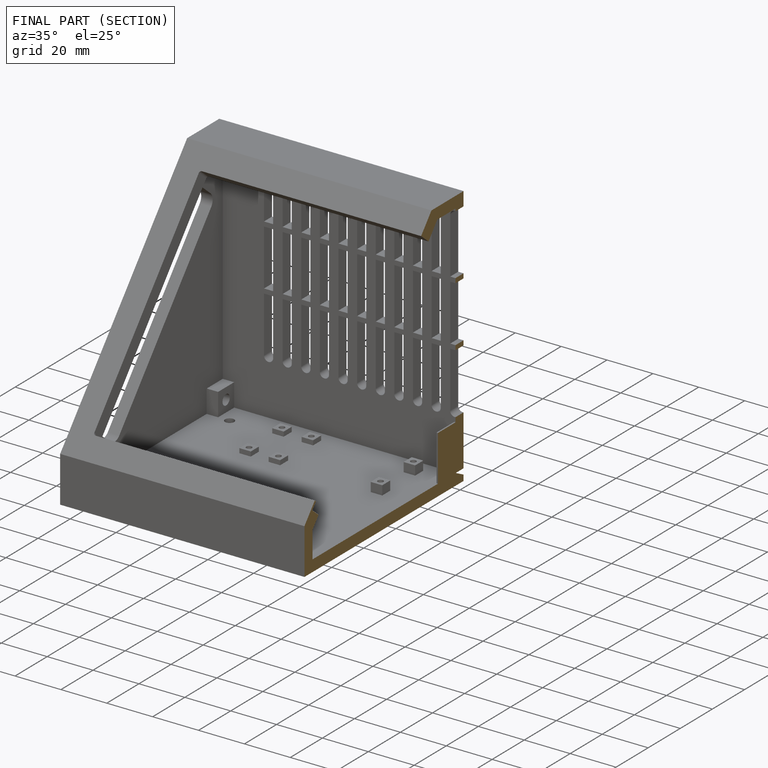
[diagram: finished part — half-section view (interior)]
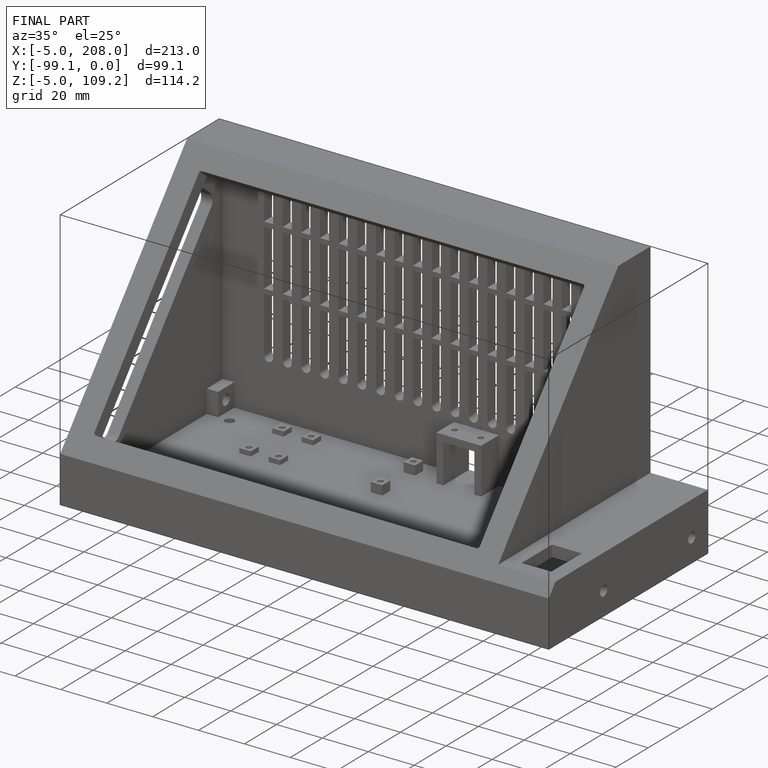
[diagram: finished part — iso view with bounding-box wireframe]
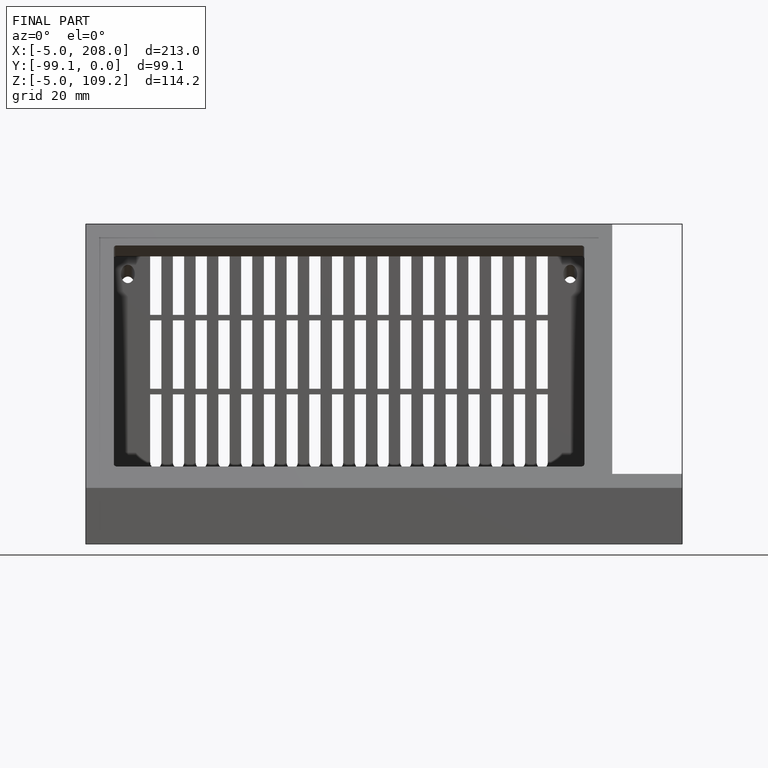
[diagram: finished part — front view with bounding-box wireframe]
